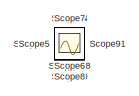
[diagram: root canvas - part 1/2, top left region]
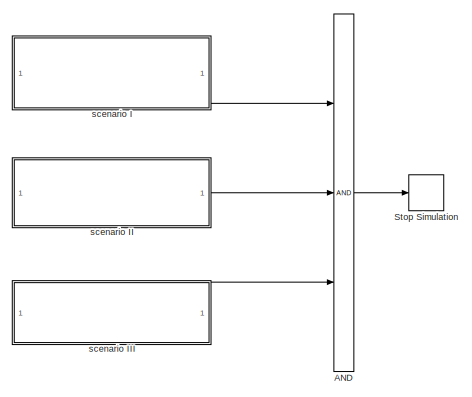
[diagram: root canvas - part 2/2, bottom right region]
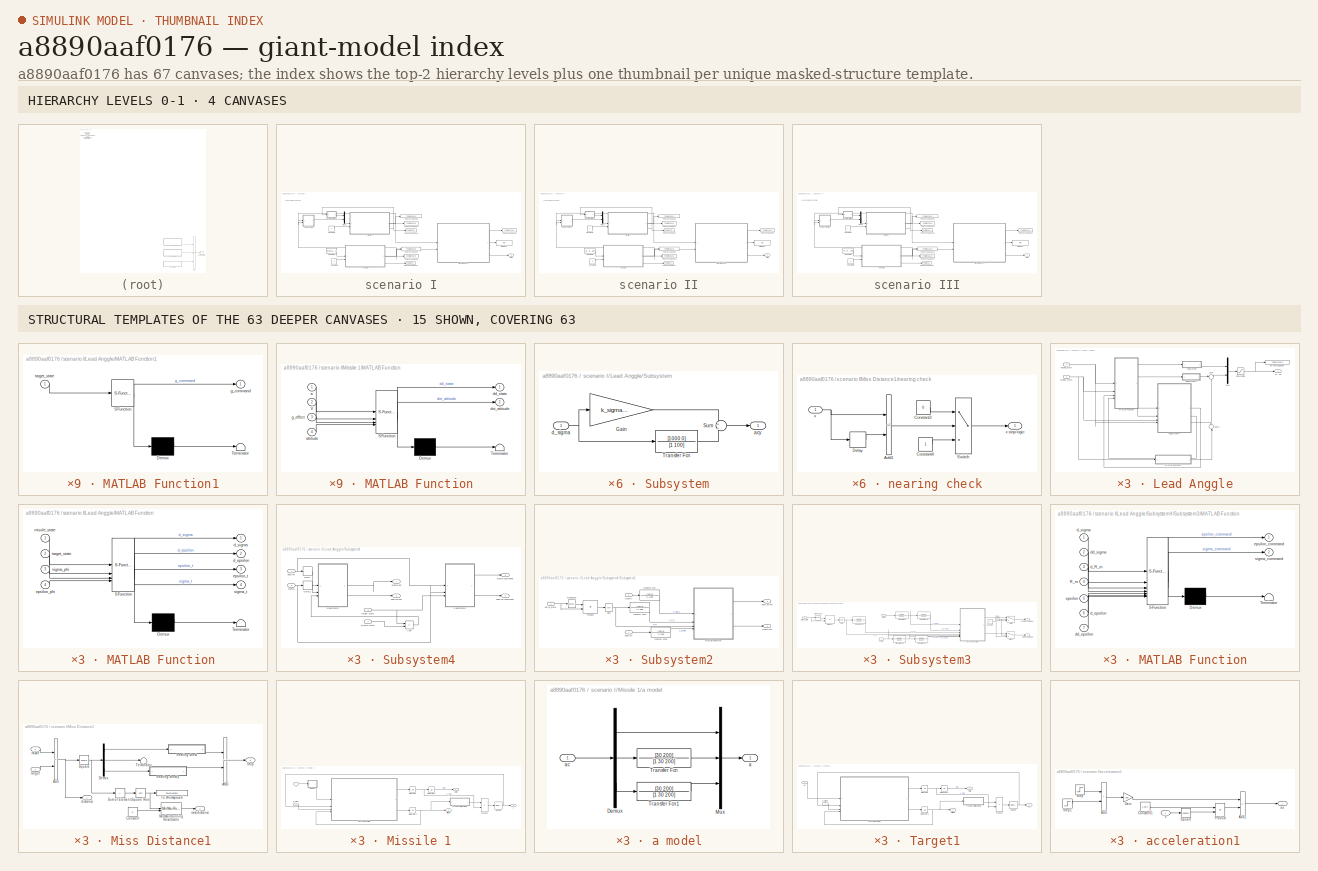
[diagram: thumbnail index - top-2 hierarchy levels (4 canvases) + 15 structural-template representatives of the remaining 63 canvases]
MODEL slx_a8890aaf0176
KIND model
CONFIG AbsTol = auto
CONFIG EnableMultiTasking = off
CONFIG FixedStep = 0.002
CONFIG InitFcn = init; % init script
CONFIG MaxStep = auto
CONFIG MinStep = auto
CONFIG RelTol = 1e-3
CONFIG SampleTimeConstraint = Unconstrained
CONFIG SolverName = ode4
CONFIG StartTime = 0.0
CONFIG StopTime = inf
BLOCK [Logic] AND
  AllPortsSameDT = off
  IconShape = distinctive
  Inputs = 3
  OutDataTypeStr = boolean
BLOCK [Scope] Scope
  Floating = off
  IOType = viewer
  NumInputPorts = 1
  ScopeSpecificationString = Simulink.scopes.TimeScopeBlockCfg('CurrentConfiguration', extmgr.ConfigurationSet(extmgr.Configuration('Core','General UI',true),extmgr.Configuration('Core','Source UI',true),extmgr.Configuration('Sources','WiredSimulink',true,'DataLoggingVariableName','ScopeData1'),extmgr.Configuration('Visuals','Time Domain',true,'SerializedDisplays',{struct('MinYLimReal','-9095.33525','MaxYLimReal','1858.01721'...<+1452ch>
BLOCK [Scope] Scope1
  Floating = off
  IOType = viewer
  NumInputPorts = 1
  ScopeSpecificationString = Simulink.scopes.TimeScopeBlockCfg('CurrentConfiguration', extmgr.ConfigurationSet(extmgr.Configuration('Core','General UI',true),extmgr.Configuration('Core','Source UI',true),extmgr.Configuration('Sources','WiredSimulink',true,'DataLoggingVariableName','ScopeData1'),extmgr.Configuration('Visuals','Time Domain',true,'SerializedDisplays',{struct('MinYLimReal','-72.81517','MaxYLimReal','655.33657','Y...<+1392ch>
BLOCK [Scope] Scope10
  Floating = off
  IOType = viewer
  NumInputPorts = 1
  ScopeSpecificationString = Simulink.scopes.TimeScopeBlockCfg('CurrentConfiguration', extmgr.ConfigurationSet(extmgr.Configuration('Core','General UI',true),extmgr.Configuration('Core','Source UI',true),extmgr.Configuration('Sources','WiredSimulink',true,'DataLoggingVariableName','ScopeData10'),extmgr.Configuration('Visuals','Time Domain',true,'SerializedDisplays',{struct('MinYLimReal','-0.3927','MaxYLimReal','3.53429','YLab...<+1358ch>
BLOCK [Scope] Scope11
  Floating = off
  IOType = viewer
  NumInputPorts = 1
  ScopeSpecificationString = Simulink.scopes.TimeScopeBlockCfg('CurrentConfiguration', extmgr.ConfigurationSet(extmgr.Configuration('Core','General UI',true),extmgr.Configuration('Core','Source UI',true),extmgr.Configuration('Sources','WiredSimulink',true,'DataLoggingVariableName','ScopeData11'),extmgr.Configuration('Visuals','Time Domain',true,'SerializedDisplays',{struct('MinYLimReal','200.00000','MaxYLimReal','400.00000','...<+1374ch>
BLOCK [Scope] Scope12
  Floating = off
  IOType = viewer
  NumInputPorts = 1
  ScopeSpecificationString = Simulink.scopes.TimeScopeBlockCfg('CurrentConfiguration', extmgr.ConfigurationSet(extmgr.Configuration('Core','General UI',true),extmgr.Configuration('Core','Source UI',true),extmgr.Configuration('Sources','WiredSimulink',true,'DataLoggingVariableName','ScopeData1'),extmgr.Configuration('Visuals','Time Domain',true,'SerializedDisplays',{struct('MinYLimReal','-604.06326','MaxYLimReal','5436.56932',...<+1459ch>
BLOCK [Scope] Scope13
  Floating = off
  IOType = viewer
  NumInputPorts = 1
  ScopeSpecificationString = Simulink.scopes.TimeScopeBlockCfg('CurrentConfiguration', extmgr.ConfigurationSet(extmgr.Configuration('Core','General UI',true),extmgr.Configuration('Core','Source UI',true),extmgr.Configuration('Sources','WiredSimulink',true,'DataLoggingVariableName','ScopeData1'),extmgr.Configuration('Visuals','Time Domain',true,'SerializedDisplays',{struct('MinYLimReal','-72.57557','MaxYLimReal','653.1801','YL...<+1403ch>
BLOCK [Scope] Scope14
  Floating = off
  IOType = viewer
  NumInputPorts = 1
  ScopeSpecificationString = Simulink.scopes.TimeScopeBlockCfg('CurrentConfiguration', extmgr.ConfigurationSet(extmgr.Configuration('Core','General UI',true),extmgr.Configuration('Core','Source UI',true),extmgr.Configuration('Sources','WiredSimulink',true,'DataLoggingVariableName','ScopeData2'),extmgr.Configuration('Visuals','Time Domain',true,'SerializedDisplays',{struct('MinYLimReal','-0.0000000000000000175','MaxYLimReal','...<+1510ch>
BLOCK [Scope] Scope15
  Floating = off
  IOType = viewer
  NumInputPorts = 1
  ScopeSpecificationString = Simulink.scopes.TimeScopeBlockCfg('CurrentConfiguration', extmgr.ConfigurationSet(extmgr.Configuration('Core','General UI',true),extmgr.Configuration('Core','Source UI',true),extmgr.Configuration('Sources','WiredSimulink',true,'DataLoggingVariableName','ScopeData2'),extmgr.Configuration('Visuals','Time Domain',true,'SerializedDisplays',{struct('MinYLimReal','-0.02332','MaxYLimReal','-0.02251','YLa...<+1398ch>
BLOCK [Scope] Scope16
  Floating = off
  IOType = viewer
  NumInputPorts = 1
  ScopeSpecificationString = Simulink.scopes.TimeScopeBlockCfg('CurrentConfiguration', extmgr.ConfigurationSet(extmgr.Configuration('Core','General UI',true),extmgr.Configuration('Core','Source UI',true),extmgr.Configuration('Sources','WiredSimulink',true,'DataLoggingVariableName','ScopeData4'),extmgr.Configuration('Visuals','Time Domain',true,'SerializedDisplays',{struct('MinYLimReal','-6.13125','MaxYLimReal','55.18125','YLa...<+1415ch>
BLOCK [Scope] Scope17
  Floating = off
  IOType = viewer
  NumInputPorts = 1
  ScopeSpecificationString = Simulink.scopes.TimeScopeBlockCfg('CurrentConfiguration', extmgr.ConfigurationSet(extmgr.Configuration('Core','General UI',true),extmgr.Configuration('Core','Source UI',true),extmgr.Configuration('Sources','WiredSimulink',true,'DataLoggingVariableName','ScopeData5'),extmgr.Configuration('Visuals','Time Domain',true,'SerializedDisplays',{struct('MinYLimReal','5491.82041','MaxYLimReal','8883.13523',...<+1409ch>
BLOCK [Scope] Scope18
  Floating = off
  IOType = viewer
  NumInputPorts = 1
  ScopeSpecificationString = Simulink.scopes.TimeScopeBlockCfg('CurrentConfiguration', extmgr.ConfigurationSet(extmgr.Configuration('Core','General UI',true),extmgr.Configuration('Core','Source UI',true),extmgr.Configuration('Sources','WiredSimulink',true,'DataLoggingVariableName','ScopeData6'),extmgr.Configuration('Visuals','Time Domain',true,'SerializedDisplays',{struct('MinYLimReal','-0.000000000000000009','MaxYLimReal','0...<+1493ch>
BLOCK [Scope] Scope2
  Floating = off
  IOType = viewer
  NumInputPorts = 1
  ScopeSpecificationString = Simulink.scopes.TimeScopeBlockCfg('CurrentConfiguration', extmgr.ConfigurationSet(extmgr.Configuration('Core','General UI',true),extmgr.Configuration('Core','Source UI',true),extmgr.Configuration('Sources','WiredSimulink',true,'DataLoggingVariableName','ScopeData1'),extmgr.Configuration('Visuals','Time Domain',true,'SerializedDisplays',{struct('MinYLimReal','-6.13125','MaxYLimReal','55.18125','YLa...<+1388ch>
BLOCK [Scope] Scope20
  Floating = off
  IOType = viewer
  NumInputPorts = 1
  ScopeSpecificationString = Simulink.scopes.TimeScopeBlockCfg('CurrentConfiguration', extmgr.ConfigurationSet(extmgr.Configuration('Core','General UI',true),extmgr.Configuration('Core','Source UI',true),extmgr.Configuration('Sources','WiredSimulink',true,'DataLoggingVariableName','ScopeData8'),extmgr.Configuration('Visuals','Time Domain',true,'SerializedDisplays',{struct('MinYLimReal','-4.47062','MaxYLimReal','40.36014','YLa...<+1397ch>
BLOCK [Scope] Scope21
  Floating = off
  IOType = viewer
  NumInputPorts = 1
  ScopeSpecificationString = Simulink.scopes.TimeScopeBlockCfg('CurrentConfiguration', extmgr.ConfigurationSet(extmgr.Configuration('Core','General UI',true),extmgr.Configuration('Core','Source UI',true),extmgr.Configuration('Sources','WiredSimulink',true,'DataLoggingVariableName','ScopeData9'),extmgr.Configuration('Visuals','Time Domain',true,'SerializedDisplays',{struct('MinYLimReal','-994.25187','MaxYLimReal','4096.81321',...<+1412ch>
BLOCK [Scope] Scope22
  Floating = off
  IOType = viewer
  NumInputPorts = 1
  ScopeSpecificationString = Simulink.scopes.TimeScopeBlockCfg('CurrentConfiguration', extmgr.ConfigurationSet(extmgr.Configuration('Core','General UI',true),extmgr.Configuration('Core','Source UI',true),extmgr.Configuration('Sources','WiredSimulink',true,'DataLoggingVariableName','ScopeData10'),extmgr.Configuration('Visuals','Time Domain',true,'SerializedDisplays',{struct('MinYLimReal','-0.00000000000000001','MaxYLimReal','0...<+1508ch>
BLOCK [Scope] Scope23
  Floating = off
  IOType = viewer
  NumInputPorts = 1
  ScopeSpecificationString = Simulink.scopes.TimeScopeBlockCfg('CurrentConfiguration', extmgr.ConfigurationSet(extmgr.Configuration('Core','General UI',true),extmgr.Configuration('Core','Source UI',true),extmgr.Configuration('Sources','WiredSimulink',true,'DataLoggingVariableName','ScopeData11'),extmgr.Configuration('Visuals','Time Domain',true,'SerializedDisplays',{struct('MinYLimReal','-0.000000000000000001','MaxYLimReal','...<+1496ch>
BLOCK [Scope] Scope24
  Floating = off
  IOType = viewer
  NumInputPorts = 1
  ScopeSpecificationString = Simulink.scopes.TimeScopeBlockCfg('CurrentConfiguration', extmgr.ConfigurationSet(extmgr.Configuration('Core','General UI',true),extmgr.Configuration('Core','Source UI',true),extmgr.Configuration('Sources','WiredSimulink',true,'DataLoggingVariableName','ScopeData1'),extmgr.Configuration('Visuals','Time Domain',true,'SerializedDisplays',{struct('MinYLimReal','-107115.79279','MaxYLimReal','961235.50...<+1427ch>
BLOCK [Scope] Scope3
  Floating = off
  IOType = viewer
  NumInputPorts = 1
  ScopeSpecificationString = Simulink.scopes.TimeScopeBlockCfg('CurrentConfiguration', extmgr.ConfigurationSet(extmgr.Configuration('Core','General UI',true),extmgr.Configuration('Core','Source UI',true),extmgr.Configuration('Sources','WiredSimulink',true,'DataLoggingVariableName','ScopeData1'),extmgr.Configuration('Visuals','Time Domain',true,'SerializedDisplays',{struct('MinYLimReal','-337.5','MaxYLimReal','37.5','YLabelRea...<+1380ch>
BLOCK [Scope] Scope4
  Floating = off
  IOType = viewer
  NumInputPorts = 1
  ScopeSpecificationString = Simulink.scopes.TimeScopeBlockCfg('CurrentConfiguration', extmgr.ConfigurationSet(extmgr.Configuration('Core','General UI',true),extmgr.Configuration('Core','Source UI',true),extmgr.Configuration('Sources','WiredSimulink',true,'DataLoggingVariableName','ScopeData2'),extmgr.Configuration('Visuals','Time Domain',true,'SerializedDisplays',{struct('MinYLimReal','-337.5','MaxYLimReal','37.5','YLabelRea...<+1380ch>
BLOCK [Scope] Scope5
  Floating = off
  IOType = viewer
  NumInputPorts = 1
  ScopeSpecificationString = Simulink.scopes.TimeScopeBlockCfg('CurrentConfiguration', extmgr.ConfigurationSet(extmgr.Configuration('Core','General UI',true),extmgr.Configuration('Core','Source UI',true),extmgr.Configuration('Sources','WiredSimulink',true,'DataLoggingVariableName','ScopeData3'),extmgr.Configuration('Visuals','Time Domain',true,'SerializedDisplays',{struct('MinYLimReal','-1.00000','MaxYLimReal','1.00000','YLab...<+1359ch>
BLOCK [Scope] Scope6
  Floating = off
  IOType = viewer
  NumInputPorts = 1
  ScopeSpecificationString = Simulink.scopes.TimeScopeBlockCfg('CurrentConfiguration', extmgr.ConfigurationSet(extmgr.Configuration('Core','General UI',true),extmgr.Configuration('Core','Source UI',true),extmgr.Configuration('Sources','WiredSimulink',true,'DataLoggingVariableName','ScopeData6'),extmgr.Configuration('Visuals','Time Domain',true,'SerializedDisplays',{struct('MinYLimReal','-614.44146','MaxYLimReal','5529.9731','...<+1399ch>
BLOCK [Scope] Scope7
  Floating = off
  IOType = viewer
  NumInputPorts = 1
  ScopeSpecificationString = Simulink.scopes.TimeScopeBlockCfg('CurrentConfiguration', extmgr.ConfigurationSet(extmgr.Configuration('Core','General UI',true),extmgr.Configuration('Core','Source UI',true),extmgr.Configuration('Sources','WiredSimulink',true,'DataLoggingVariableName','ScopeData7'),extmgr.Configuration('Visuals','Time Domain',true,'SerializedDisplays',{struct('MinYLimReal','-0.11496','MaxYLimReal','1.03464','YLab...<+1359ch>
BLOCK [Scope] Scope8
  Floating = off
  IOType = viewer
  NumInputPorts = 1
  ScopeSpecificationString = Simulink.scopes.TimeScopeBlockCfg('CurrentConfiguration', extmgr.ConfigurationSet(extmgr.Configuration('Core','General UI',true),extmgr.Configuration('Core','Source UI',true),extmgr.Configuration('Sources','WiredSimulink',true,'DataLoggingVariableName','ScopeData8'),extmgr.Configuration('Visuals','Time Domain',true,'SerializedDisplays',{struct('MinYLimReal','412.19771','MaxYLimReal','425.81202','Y...<+1373ch>
BLOCK [Scope] Scope9
  Floating = off
  IOType = viewer
  NumInputPorts = 1
  ScopeSpecificationString = Simulink.scopes.TimeScopeBlockCfg('CurrentConfiguration', extmgr.ConfigurationSet(extmgr.Configuration('Core','General UI',true),extmgr.Configuration('Core','Source UI',true),extmgr.Configuration('Sources','WiredSimulink',true,'DataLoggingVariableName','ScopeData9'),extmgr.Configuration('Visuals','Time Domain',true,'SerializedDisplays',{struct('MinYLimReal','-625.00000','MaxYLimReal','5625.00000',...<+1406ch>
BLOCK [Stop] Stop Simulation
BLOCK [SubSystem] scenario I
BLOCK [Constant] scenario I/Constant3
BLOCK [Constant] scenario I/Constant4
  Value = zeros(3, 1)
BLOCK [Constant] scenario I/Constant5
  Value = 0
BLOCK [Display] scenario I/Display1
  Decimation = 1
BLOCK [SubSystem] scenario I/Lead Anggle
BLOCK [SubSystem] scenario I/Lead Anggle/MATLAB Function
  ErrorFcn = Stateflow.Translate.translate
  LibrarySourceBlock = simulink/User-Defined\nFunctions/MATLAB Function
  PermitHierarchicalResolution = ExplicitOnly
  SFBlockType = MATLAB Function
  TreatAsAtomicUnit = on
BLOCK [Demux] scenario I/Lead Anggle/MATLAB Function/ Demux 
  Outputs = 1
BLOCK [S-Function] scenario I/Lead Anggle/MATLAB Function/ SFunction 
  EnableBusSupport = on
  FunctionName = sf_sfun
  PortCounts = [4 5]
  SFcnIsStateOwnerBlock = off
  SFunctionDeploymentMode = off
  Tag = Stateflow S-Function 14
BLOCK [Terminator] scenario I/Lead Anggle/MATLAB Function/ Terminator 
BLOCK [Outport] scenario I/Lead Anggle/MATLAB Function/d_epsilon
  Port = 2
BLOCK [Outport] scenario I/Lead Anggle/MATLAB Function/d_sigma
BLOCK [Inport] scenario I/Lead Anggle/MATLAB Function/epsilon_phi
  Port = 4
BLOCK [Outport] scenario I/Lead Anggle/MATLAB Function/epsilon_t
  Port = 3
BLOCK [Inport] scenario I/Lead Anggle/MATLAB Function/missle_state
BLOCK [Inport] scenario I/Lead Anggle/MATLAB Function/sigma_phi
  Port = 3
BLOCK [Outport] scenario I/Lead Anggle/MATLAB Function/sigma_t
  Port = 4
BLOCK [Inport] scenario I/Lead Anggle/MATLAB Function/target_state
  Port = 2
BLOCK [SubSystem] scenario I/Lead Anggle/MATLAB Function1
  ErrorFcn = Stateflow.Translate.translate
  LibrarySourceBlock = simulink/User-Defined\nFunctions/MATLAB Function
  PermitHierarchicalResolution = ExplicitOnly
  SFBlockType = MATLAB Function
  TreatAsAtomicUnit = on
BLOCK [Demux] scenario I/Lead Anggle/MATLAB Function1/ Demux 
  Outputs = 1
BLOCK [S-Function] scenario I/Lead Anggle/MATLAB Function1/ SFunction 
  EnableBusSupport = on
  FunctionName = sf_sfun
  PortCounts = [1 2]
  SFcnIsStateOwnerBlock = off
  SFunctionDeploymentMode = off
  Tag = Stateflow S-Function 15
BLOCK [Terminator] scenario I/Lead Anggle/MATLAB Function1/ Terminator 
BLOCK [Outport] scenario I/Lead Anggle/MATLAB Function1/g_command
BLOCK [Inport] scenario I/Lead Anggle/MATLAB Function1/target_state
BLOCK [Mux] scenario I/Lead Anggle/Mux
  DisplayOption = bar
  Inputs = 2
BLOCK [Saturate] scenario I/Lead Anggle/Saturation
  LowerLimit = -5*9.81
  UpperLimit = 5*9.81
BLOCK [SubSystem] scenario I/Lead Anggle/Subsystem
BLOCK [Gain] scenario I/Lead Anggle/Subsystem/Gain
  Gain = k_sigma_lead_angle
BLOCK [Sum] scenario I/Lead Anggle/Subsystem/Sum
  Inputs = +|+
BLOCK [TransferFcn] scenario I/Lead Anggle/Subsystem/Transfer Fcn
  Denominator = [1 100]
  Numerator = [1000 0]
BLOCK [Outport] scenario I/Lead Anggle/Subsystem/acy
BLOCK [Inport] scenario I/Lead Anggle/Subsystem/d_sigma
BLOCK [SubSystem] scenario I/Lead Anggle/Subsystem1
BLOCK [Gain] scenario I/Lead Anggle/Subsystem1/Gain1
  Gain = k_epsilon_lead_angle
BLOCK [Sum] scenario I/Lead Anggle/Subsystem1/Sum
  Inputs = +|+
BLOCK [TransferFcn] scenario I/Lead Anggle/Subsystem1/Transfer Fcn
  Denominator = [1 100]
  Numerator = [1000 0]
BLOCK [Outport] scenario I/Lead Anggle/Subsystem1/azc
BLOCK [Inport] scenario I/Lead Anggle/Subsystem1/d_epsilon
BLOCK [SubSystem] scenario I/Lead Anggle/Subsystem4
BLOCK [Sum] scenario I/Lead Anggle/Subsystem4/Add
  IconShape = rectangular
  Inputs = -+
BLOCK [Delay] scenario I/Lead Anggle/Subsystem4/Delay
  DelayLength = 1
  InputPortMap = u0
BLOCK [Delay] scenario I/Lead Anggle/Subsystem4/Delay1
  DelayLength = 1
  InputPortMap = u0
BLOCK [SubSystem] scenario I/Lead Anggle/Subsystem4/Subsystem2
BLOCK [SubSystem] scenario I/Lead Anggle/Subsystem4/Subsystem2/MATLAB Function
  ErrorFcn = Stateflow.Translate.translate
  LibrarySourceBlock = simulink/User-Defined\nFunctions/MATLAB Function
  PermitHierarchicalResolution = ExplicitOnly
  SFBlockType = MATLAB Function
  TreatAsAtomicUnit = on
BLOCK [Demux] scenario I/Lead Anggle/Subsystem4/Subsystem2/MATLAB Function/ Demux 
  Outputs = 1
BLOCK [S-Function] scenario I/Lead Anggle/Subsystem4/Subsystem2/MATLAB Function/ SFunction 
  EnableBusSupport = on
  FunctionName = sf_sfun
  PortCounts = [4 3]
  SFcnIsStateOwnerBlock = off
  SFunctionDeploymentMode = off
  Tag = Stateflow S-Function 16
BLOCK [Terminator] scenario I/Lead Anggle/Subsystem4/Subsystem2/MATLAB Function/ Terminator 
BLOCK [Inport] scenario I/Lead Anggle/Subsystem4/Subsystem2/MATLAB Function/d_delta_R
  Port = 2
BLOCK [Inport] scenario I/Lead Anggle/Subsystem4/Subsystem2/MATLAB Function/d_epsilon
  Port = 4
BLOCK [Inport] scenario I/Lead Anggle/Subsystem4/Subsystem2/MATLAB Function/d_sigma
BLOCK [Inport] scenario I/Lead Anggle/Subsystem4/Subsystem2/MATLAB Function/delta_R
  Port = 3
BLOCK [Outport] scenario I/Lead Anggle/Subsystem4/Subsystem2/MATLAB Function/epsilon_phi
BLOCK [Outport] scenario I/Lead Anggle/Subsystem4/Subsystem2/MATLAB Function/sigma_phi
  Port = 2
BLOCK [Product] scenario I/Lead Anggle/Subsystem4/Subsystem2/Product
  Multiplication = Matrix(*)
BLOCK [Sqrt] scenario I/Lead Anggle/Subsystem4/Subsystem2/Sqrt
BLOCK [TransferFcn] scenario I/Lead Anggle/Subsystem4/Subsystem2/Transfer Fcn
  Denominator = [1 100]
  Numerator = [100 0]
BLOCK [TransferFcn] scenario I/Lead Anggle/Subsystem4/Subsystem2/Transfer Fcn2
  Denominator = [1 100]
  Numerator = [100 0]
BLOCK [TransferFcn] scenario I/Lead Anggle/Subsystem4/Subsystem2/Transfer Fcn4
  Denominator = [1 100]
  Numerator = [100 0]
BLOCK [Math] scenario I/Lead Anggle/Subsystem4/Subsystem2/Transpose
  Operator = transpose
BLOCK [Inport] scenario I/Lead Anggle/Subsystem4/Subsystem2/delta_state
  Port = 3
BLOCK [Inport] scenario I/Lead Anggle/Subsystem4/Subsystem2/epsilon
BLOCK [Outport] scenario I/Lead Anggle/Subsystem4/Subsystem2/epsilon phi
  Port = 2
BLOCK [Inport] scenario I/Lead Anggle/Subsystem4/Subsystem2/sigma
  Port = 2
BLOCK [Outport] scenario I/Lead Anggle/Subsystem4/Subsystem2/sigma phi
BLOCK [SubSystem] scenario I/Lead Anggle/Subsystem4/Subsystem3
BLOCK [Clock] scenario I/Lead Anggle/Subsystem4/Subsystem3/Clock
BLOCK [Constant] scenario I/Lead Anggle/Subsystem4/Subsystem3/Constant
  Value = 0
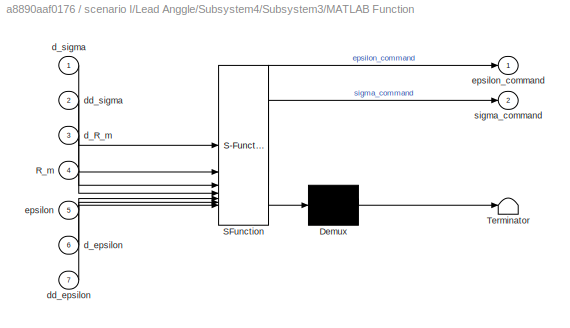
BLOCK [SubSystem] scenario I/Lead Anggle/Subsystem4/Subsystem3/MATLAB Function
  ErrorFcn = Stateflow.Translate.translate
  LibrarySourceBlock = simulink/User-Defined\nFunctions/MATLAB Function
  PermitHierarchicalResolution = ExplicitOnly
  SFBlockType = MATLAB Function
  TreatAsAtomicUnit = on
BLOCK [Demux] scenario I/Lead Anggle/Subsystem4/Subsystem3/MATLAB Function/ Demux 
  Outputs = 1
BLOCK [S-Function] scenario I/Lead Anggle/Subsystem4/Subsystem3/MATLAB Function/ SFunction 
  EnableBusSupport = on
  FunctionName = sf_sfun
  PortCounts = [7 3]
  SFcnIsStateOwnerBlock = off
  SFunctionDeploymentMode = off
  Tag = Stateflow S-Function 11
BLOCK [Terminator] scenario I/Lead Anggle/Subsystem4/Subsystem3/MATLAB Function/ Terminator 
BLOCK [Inport] scenario I/Lead Anggle/Subsystem4/Subsystem3/MATLAB Function/R_m
  Port = 4
BLOCK [Inport] scenario I/Lead Anggle/Subsystem4/Subsystem3/MATLAB Function/d_R_m
  Port = 3
BLOCK [Inport] scenario I/Lead Anggle/Subsystem4/Subsystem3/MATLAB Function/d_epsilon
  Port = 6
BLOCK [Inport] scenario I/Lead Anggle/Subsystem4/Subsystem3/MATLAB Function/d_sigma
BLOCK [Inport] scenario I/Lead Anggle/Subsystem4/Subsystem3/MATLAB Function/dd_epsilon
  Port = 7
BLOCK [Inport] scenario I/Lead Anggle/Subsystem4/Subsystem3/MATLAB Function/dd_sigma
  Port = 2
BLOCK [Inport] scenario I/Lead Anggle/Subsystem4/Subsystem3/MATLAB Function/epsilon
  Port = 5
BLOCK [Outport] scenario I/Lead Anggle/Subsystem4/Subsystem3/MATLAB Function/epsilon_command
BLOCK [Outport] scenario I/Lead Anggle/Subsystem4/Subsystem3/MATLAB Function/sigma_command
  Port = 2
BLOCK [Product] scenario I/Lead Anggle/Subsystem4/Subsystem3/Product
  Multiplication = Matrix(*)
BLOCK [Sqrt] scenario I/Lead Anggle/Subsystem4/Subsystem3/Sqrt
BLOCK [Switch] scenario I/Lead Anggle/Subsystem4/Subsystem3/Switch
  Criteria = u2 > Threshold
  InputSameDT = off
  SaturateOnIntegerOverflow = off
  Threshold = 0.2
BLOCK [Switch] scenario I/Lead Anggle/Subsystem4/Subsystem3/Switch1
  Criteria = u2 > Threshold
  InputSameDT = off
  SaturateOnIntegerOverflow = off
  Threshold = 0.2
BLOCK [TransferFcn] scenario I/Lead Anggle/Subsystem4/Subsystem3/Transfer Fcn
  Denominator = [1 100]
  Numerator = [100 0]
BLOCK [TransferFcn] scenario I/Lead Anggle/Subsystem4/Subsystem3/Transfer Fcn1
  Denominator = [1 100]
  Numerator = [100 0]
BLOCK [TransferFcn] scenario I/Lead Anggle/Subsystem4/Subsystem3/Transfer Fcn2
  Denominator = [1 100]
  Numerator = [100 0]
BLOCK [TransferFcn] scenario I/Lead Anggle/Subsystem4/Subsystem3/Transfer Fcn3
  Denominator = [1 100]
  Numerator = [100 0]
BLOCK [TransferFcn] scenario I/Lead Anggle/Subsystem4/Subsystem3/Transfer Fcn4
  Denominator = [1 100]
  Numerator = [100 0]
BLOCK [Math] scenario I/Lead Anggle/Subsystem4/Subsystem3/Transpose
  Operator = transpose
BLOCK [Inport] scenario I/Lead Anggle/Subsystem4/Subsystem3/epsilon
BLOCK [Outport] scenario I/Lead Anggle/Subsystem4/Subsystem3/epsilon command
  Port = 2
BLOCK [Inport] scenario I/Lead Anggle/Subsystem4/Subsystem3/sigma
  Port = 2
BLOCK [Outport] scenario I/Lead Anggle/Subsystem4/Subsystem3/sigma command
BLOCK [Inport] scenario I/Lead Anggle/Subsystem4/Subsystem3/target_state
  Port = 3
BLOCK [Inport] scenario I/Lead Anggle/Subsystem4/epsilon
BLOCK [Outport] scenario I/Lead Anggle/Subsystem4/epsilon command
  Port = 4
BLOCK [Outport] scenario I/Lead Anggle/Subsystem4/epsilon phi
  Port = 2
BLOCK [Inport] scenario I/Lead Anggle/Subsystem4/missle state
  Port = 4
BLOCK [Inport] scenario I/Lead Anggle/Subsystem4/sigma
  Port = 2
BLOCK [Outport] scenario I/Lead Anggle/Subsystem4/sigma command
  Port = 3
BLOCK [Outport] scenario I/Lead Anggle/Subsystem4/sigma phi
BLOCK [Inport] scenario I/Lead Anggle/Subsystem4/target state
  Port = 3
BLOCK [Sum] scenario I/Lead Anggle/Sum
  Inputs = |++
BLOCK [Sum] scenario I/Lead Anggle/Sum1
  Inputs = ++|
  NameLocation = right
BLOCK [ToWorkspace] scenario I/Lead Anggle/To Workspace6
  FixptAsFi = on
  MaxDataPoints = inf
  SampleTime = -1
  Save2DSignal = 2-D array (concatenate along first dimension)
  SaveFormat = Timeseries
  VariableName = command_lead_angle
BLOCK [Outport] scenario I/Lead Anggle/ay, az
BLOCK [Inport] scenario I/Lead Anggle/missle_state
BLOCK [Inport] scenario I/Lead Anggle/target_state
  Port = 2
BLOCK [SubSystem] scenario I/Miss Distance1
BLOCK [Logic] scenario I/Miss Distance1/AND
  AllPortsSameDT = off
  IconShape = distinctive
  OutDataTypeStr = boolean
BLOCK [Sum] scenario I/Miss Distance1/Add
  IconShape = rectangular
  Inputs = +-
BLOCK [Constant] scenario I/Miss Distance1/Constant
  Value = 0
BLOCK [Demux] scenario I/Miss Distance1/Demux
  Outputs = 3
BLOCK [Reference] scenario I/Miss Distance1/MinMax Running Resettable  REF=simulink/Math
Operations/MinMax
Running
Resettable
  SourceBlock = simulink/Math\nOperations/MinMax\nRunning\nResettable
  SourceType = MinMax Running Resettable
BLOCK [Math] scenario I/Miss Distance1/Square
  Operator = square
BLOCK [Sqrt] scenario I/Miss Distance1/Square Root
BLOCK [Outport] scenario I/Miss Distance1/Stop
  Port = 3
BLOCK [Sum] scenario I/Miss Distance1/Sum of Elements
  IconShape = rectangular
  Inputs = +
BLOCK [Terminator] scenario I/Miss Distance1/Terminator
BLOCK [ToWorkspace] scenario I/Miss Distance1/To Workspace6
  FixptAsFi = on
  MaxDataPoints = inf
  SampleTime = -1
  Save2DSignal = 2-D array (concatenate along first dimension)
  SaveFormat = Timeseries
  VariableName = distance_lead_angle
BLOCK [Outport] scenario I/Miss Distance1/distance
BLOCK [Outport] scenario I/Miss Distance1/miss distance
  Port = 2
BLOCK [Inport] scenario I/Miss Distance1/missle
BLOCK [SubSystem] scenario I/Miss Distance1/nearing check
BLOCK [SubSystem] scenario I/Miss Distance1/nearing check y
BLOCK [Sum] scenario I/Miss Distance1/nearing check y/Add1
  IconShape = rectangular
  Inputs = -+
BLOCK [Constant] scenario I/Miss Distance1/nearing check y/Constant3
  Value = 0
BLOCK [Constant] scenario I/Miss Distance1/nearing check y/Constant4
BLOCK [Delay] scenario I/Miss Distance1/nearing check y/Delay
  DelayLength = 1
  InitialCondition = inf
  InputPortMap = u0
BLOCK [Switch] scenario I/Miss Distance1/nearing check y/Switch
  Criteria = u2 > Threshold
  InputSameDT = off
  SaturateOnIntegerOverflow = off
BLOCK [Inport] scenario I/Miss Distance1/nearing check y/z
BLOCK [Outport] scenario I/Miss Distance1/nearing check y/z stop logic
BLOCK [Sum] scenario I/Miss Distance1/nearing check/Add1
  IconShape = rectangular
  Inputs = -+
BLOCK [Constant] scenario I/Miss Distance1/nearing check/Constant3
  Value = 0
BLOCK [Constant] scenario I/Miss Distance1/nearing check/Constant4
BLOCK [Delay] scenario I/Miss Distance1/nearing check/Delay
  DelayLength = 1
  InitialCondition = inf
  InputPortMap = u0
BLOCK [Switch] scenario I/Miss Distance1/nearing check/Switch
  Criteria = u2 > Threshold
  InputSameDT = off
  SaturateOnIntegerOverflow = off
BLOCK [Inport] scenario I/Miss Distance1/nearing check/x
BLOCK [Outport] scenario I/Miss Distance1/nearing check/x stop logic
BLOCK [Inport] scenario I/Miss Distance1/target
  Port = 2
BLOCK [SubSystem] scenario I/Missile 1
BLOCK [Integrator] scenario I/Missile 1/Integrator
  InitialCondition = d_state_m
BLOCK [Integrator] scenario I/Missile 1/Integrator1
  InitialCondition = state_m0
BLOCK [Integrator] scenario I/Missile 1/Integrator2
  InitialCondition = attitude_m0
BLOCK [SubSystem] scenario I/Missile 1/MATLAB Function
  ErrorFcn = Stateflow.Translate.translate
  LibrarySourceBlock = simulink/User-Defined\nFunctions/MATLAB Function
  PermitHierarchicalResolution = ExplicitOnly
  SFBlockType = MATLAB Function
  TreatAsAtomicUnit = on
BLOCK [Demux] scenario I/Missile 1/MATLAB Function/ Demux 
  Outputs = 1
BLOCK [S-Function] scenario I/Missile 1/MATLAB Function/ SFunction 
  EnableBusSupport = on
  FunctionName = sf_sfun
  PortCounts = [4 3]
  SFcnIsStateOwnerBlock = off
  SFunctionDeploymentMode = off
  Tag = Stateflow S-Function 5
BLOCK [Terminator] scenario I/Missile 1/MATLAB Function/ Terminator 
BLOCK [Inport] scenario I/Missile 1/MATLAB Function/V
  Port = 2
BLOCK [Inport] scenario I/Missile 1/MATLAB Function/a
BLOCK [Inport] scenario I/Missile 1/MATLAB Function/attitude
  Port = 4
BLOCK [Outport] scenario I/Missile 1/MATLAB Function/dd_state
BLOCK [Outport] scenario I/Missile 1/MATLAB Function/dot_attitude
  Port = 2
BLOCK [Inport] scenario I/Missile 1/MATLAB Function/g_effect
  Port = 3
BLOCK [Product] scenario I/Missile 1/Product
  Multiplication = Matrix(*)
BLOCK [Selector] scenario I/Missile 1/Selector
  IndexOptions = Index vector (dialog)
  Indices = [1]
  InputPortWidth = 3
  OutputSizes = 1
BLOCK [SubSystem] scenario I/Missile 1/Transformation Matrix
  ErrorFcn = Stateflow.Translate.translate
  LibrarySourceBlock = simulink/User-Defined\nFunctions/MATLAB Function
  PermitHierarchicalResolution = ExplicitOnly
  SFBlockType = MATLAB Function
  TreatAsAtomicUnit = on
BLOCK [Demux] scenario I/Missile 1/Transformation Matrix/ Demux 
  Outputs = 1
BLOCK [S-Function] scenario I/Missile 1/Transformation Matrix/ SFunction 
  EnableBusSupport = on
  FunctionName = sf_sfun
  PortCounts = [1 2]
  SFcnIsStateOwnerBlock = off
  SFunctionDeploymentMode = off
  Tag = Stateflow S-Function 6
BLOCK [Terminator] scenario I/Missile 1/Transformation Matrix/ Terminator 
BLOCK [Outport] scenario I/Missile 1/Transformation Matrix/T_GV
BLOCK [Inport] scenario I/Missile 1/Transformation Matrix/attitude
BLOCK [Outport] scenario I/Missile 1/V
  Port = 3
BLOCK [Inport] scenario I/Missile 1/a
BLOCK [SubSystem] scenario I/Missile 1/a model
BLOCK [Demux] scenario I/Missile 1/a model/Demux
  Outputs = 3
BLOCK [Mux] scenario I/Missile 1/a model/Mux
  DisplayOption = bar
  Inputs = 3
BLOCK [TransferFcn] scenario I/Missile 1/a model/Transfer Fcn
  Denominator = [1 30 200]
  Numerator = [30 200]
BLOCK [TransferFcn] scenario I/Missile 1/a model/Transfer Fcn1
  Denominator = [1 30 200]
  Numerator = [30 200]
BLOCK [Outport] scenario I/Missile 1/a model/a
BLOCK [Inport] scenario I/Missile 1/a model/ac
BLOCK [Outport] scenario I/Missile 1/attitude
  Port = 2
BLOCK [Inport] scenario I/Missile 1/g_effect
  Port = 2
BLOCK [Outport] scenario I/Missile 1/state
BLOCK [Mux] scenario I/Mux1
  DisplayOption = bar
  Inputs = 2
BLOCK [Outport] scenario I/Stop
BLOCK [SubSystem] scenario I/Target1
BLOCK [Integrator] scenario I/Target1/Integrator
  InitialCondition = d_state_t
BLOCK [Integrator] scenario I/Target1/Integrator1
  InitialCondition = state_t0
BLOCK [Integrator] scenario I/Target1/Integrator2
  InitialCondition = attitude_t0
BLOCK [SubSystem] scenario I/Target1/MATLAB Function
  ErrorFcn = Stateflow.Translate.translate
  LibrarySourceBlock = simulink/User-Defined\nFunctions/MATLAB Function
  PermitHierarchicalResolution = ExplicitOnly
  SFBlockType = MATLAB Function
  TreatAsAtomicUnit = on
BLOCK [Demux] scenario I/Target1/MATLAB Function/ Demux 
  Outputs = 1
BLOCK [S-Function] scenario I/Target1/MATLAB Function/ SFunction 
  EnableBusSupport = on
  FunctionName = sf_sfun
  PortCounts = [4 3]
  SFcnIsStateOwnerBlock = off
  SFunctionDeploymentMode = off
  Tag = Stateflow S-Function 9
BLOCK [Terminator] scenario I/Target1/MATLAB Function/ Terminator 
BLOCK [Inport] scenario I/Target1/MATLAB Function/V
  Port = 2
BLOCK [Inport] scenario I/Target1/MATLAB Function/a
BLOCK [Inport] scenario I/Target1/MATLAB Function/attitude
  Port = 4
BLOCK [Outport] scenario I/Target1/MATLAB Function/dd_state
BLOCK [Outport] scenario I/Target1/MATLAB Function/dot_attitude
  Port = 2
BLOCK [Inport] scenario I/Target1/MATLAB Function/g_effect
  Port = 3
BLOCK [Product] scenario I/Target1/Product
  Multiplication = Matrix(*)
BLOCK [Selector] scenario I/Target1/Selector
  IndexOptions = Index vector (dialog)
  Indices = [1]
  InputPortWidth = 3
  OutputSizes = 1
BLOCK [SubSystem] scenario I/Target1/Transformation Matrix
  ErrorFcn = Stateflow.Translate.translate
  LibrarySourceBlock = simulink/User-Defined\nFunctions/MATLAB Function
  PermitHierarchicalResolution = ExplicitOnly
  SFBlockType = MATLAB Function
  TreatAsAtomicUnit = on
BLOCK [Demux] scenario I/Target1/Transformation Matrix/ Demux 
  Outputs = 1
BLOCK [S-Function] scenario I/Target1/Transformation Matrix/ SFunction 
  EnableBusSupport = on
  FunctionName = sf_sfun
  PortCounts = [1 2]
  SFcnIsStateOwnerBlock = off
  SFunctionDeploymentMode = off
  Tag = Stateflow S-Function 10
BLOCK [Terminator] scenario I/Target1/Transformation Matrix/ Terminator 
BLOCK [Outport] scenario I/Target1/Transformation Matrix/T_GV
BLOCK [Inport] scenario I/Target1/Transformation Matrix/attitude
BLOCK [Outport] scenario I/Target1/V
  Port = 3
BLOCK [Inport] scenario I/Target1/ac
BLOCK [Outport] scenario I/Target1/attitude
  Port = 2
BLOCK [Inport] scenario I/Target1/g_effect
  Port = 2
BLOCK [Outport] scenario I/Target1/state
BLOCK [ToWorkspace] scenario I/To Workspace10
  Commented = on
  FixptAsFi = on
  MaxDataPoints = inf
  SampleTime = -1
  Save2DSignal = 2-D array (concatenate along first dimension)
  SaveFormat = Timeseries
  VariableName = missle_attitude1
BLOCK [ToWorkspace] scenario I/To Workspace11
  Commented = on
  FixptAsFi = on
  MaxDataPoints = inf
  SampleTime = -1
  Save2DSignal = 2-D array (concatenate along first dimension)
  SaveFormat = Timeseries
  VariableName = V_missle1
BLOCK [ToWorkspace] scenario I/To Workspace12
  Commented = on
  FixptAsFi = on
  MaxDataPoints = inf
  SampleTime = -1
  Save2DSignal = 2-D array (concatenate along first dimension)
  SaveFormat = Timeseries
  VariableName = V_target1
BLOCK [ToWorkspace] scenario I/To Workspace13
  Commented = on
  FixptAsFi = on
  MaxDataPoints = inf
  SampleTime = -1
  Save2DSignal = 2-D array (concatenate along first dimension)
  SaveFormat = Timeseries
  VariableName = target_distance1
BLOCK [ToWorkspace] scenario I/To Workspace7
  FixptAsFi = on
  MaxDataPoints = inf
  SampleTime = -1
  Save2DSignal = 2-D array (concatenate along first dimension)
  SaveFormat = Timeseries
  VariableName = target_state_lead_angle
BLOCK [ToWorkspace] scenario I/To Workspace8
  FixptAsFi = on
  MaxDataPoints = inf
  SampleTime = -1
  Save2DSignal = 2-D array (concatenate along first dimension)
  SaveFormat = Timeseries
  VariableName = missle_state_lead_angle
BLOCK [ToWorkspace] scenario I/To Workspace9
  Commented = on
  FixptAsFi = on
  MaxDataPoints = inf
  SampleTime = -1
  Save2DSignal = 2-D array (concatenate along first dimension)
  SaveFormat = Timeseries
  VariableName = target_attitude
BLOCK [SubSystem] scenario I/acceleration1
BLOCK [Sum] scenario I/acceleration1/Add
  IconShape = rectangular
BLOCK [Sum] scenario I/acceleration1/Add1
  IconShape = rectangular
  Inputs = +-
BLOCK [Constant] scenario I/acceleration1/Constant1
  Value = 1.5e-4
BLOCK [Gain] scenario I/acceleration1/Gain
  Gain = 300
BLOCK [Product] scenario I/acceleration1/Product
BLOCK [Math] scenario I/acceleration1/Square
  Operator = square
BLOCK [Step] scenario I/acceleration1/Step
  After = -1
  SampleTime = 0
  Time = 3
BLOCK [Step] scenario I/acceleration1/Step1
  SampleTime = 0
  Time = 0
BLOCK [Inport] scenario I/acceleration1/V
BLOCK [Outport] scenario I/acceleration1/ax
BLOCK [SubSystem] scenario II
BLOCK [Constant] scenario II/Constant1
BLOCK [Constant] scenario II/Constant2
  Value = [0; 0; 10]
BLOCK [Constant] scenario II/Constant6
  Value = 0
BLOCK [Display] scenario II/Display2
  Decimation = 1
BLOCK [SubSystem] scenario II/Lead Anggle1
BLOCK [SubSystem] scenario II/Lead Anggle1/MATLAB Function
  ErrorFcn = Stateflow.Translate.translate
  LibrarySourceBlock = simulink/User-Defined\nFunctions/MATLAB Function
  PermitHierarchicalResolution = ExplicitOnly
  SFBlockType = MATLAB Function
  TreatAsAtomicUnit = on
BLOCK [Demux] scenario II/Lead Anggle1/MATLAB Function/ Demux 
  Outputs = 1
BLOCK [S-Function] scenario II/Lead Anggle1/MATLAB Function/ SFunction 
  EnableBusSupport = on
  FunctionName = sf_sfun
  PortCounts = [4 5]
  SFcnIsStateOwnerBlock = off
  SFunctionDeploymentMode = off
  Tag = Stateflow S-Function 1
BLOCK [Terminator] scenario II/Lead Anggle1/MATLAB Function/ Terminator 
BLOCK [Outport] scenario II/Lead Anggle1/MATLAB Function/d_epsilon
  Port = 2
BLOCK [Outport] scenario II/Lead Anggle1/MATLAB Function/d_sigma
BLOCK [Inport] scenario II/Lead Anggle1/MATLAB Function/epsilon_phi
  Port = 4
BLOCK [Outport] scenario II/Lead Anggle1/MATLAB Function/epsilon_t
  Port = 3
BLOCK [Inport] scenario II/Lead Anggle1/MATLAB Function/missle_state
BLOCK [Inport] scenario II/Lead Anggle1/MATLAB Function/sigma_phi
  Port = 3
BLOCK [Outport] scenario II/Lead Anggle1/MATLAB Function/sigma_t
  Port = 4
BLOCK [Inport] scenario II/Lead Anggle1/MATLAB Function/target_state
  Port = 2
BLOCK [SubSystem] scenario II/Lead Anggle1/MATLAB Function1
  ErrorFcn = Stateflow.Translate.translate
  LibrarySourceBlock = simulink/User-Defined\nFunctions/MATLAB Function
  PermitHierarchicalResolution = ExplicitOnly
  SFBlockType = MATLAB Function
  TreatAsAtomicUnit = on
BLOCK [Demux] scenario II/Lead Anggle1/MATLAB Function1/ Demux 
  Outputs = 1
BLOCK [S-Function] scenario II/Lead Anggle1/MATLAB Function1/ SFunction 
  EnableBusSupport = on
  FunctionName = sf_sfun
  PortCounts = [1 2]
  SFcnIsStateOwnerBlock = off
  SFunctionDeploymentMode = off
  Tag = Stateflow S-Function 2
BLOCK [Terminator] scenario II/Lead Anggle1/MATLAB Function1/ Terminator 
BLOCK [Outport] scenario II/Lead Anggle1/MATLAB Function1/g_command
BLOCK [Inport] scenario II/Lead Anggle1/MATLAB Function1/target_state
BLOCK [Mux] scenario II/Lead Anggle1/Mux
  DisplayOption = bar
  Inputs = 2
BLOCK [Saturate] scenario II/Lead Anggle1/Saturation
  LowerLimit = -5*9.81
  UpperLimit = 5*9.81
BLOCK [SubSystem] scenario II/Lead Anggle1/Subsystem
BLOCK [Gain] scenario II/Lead Anggle1/Subsystem/Gain
  Gain = k_sigma_lead_angle
BLOCK [Sum] scenario II/Lead Anggle1/Subsystem/Sum
  Inputs = +|+
BLOCK [TransferFcn] scenario II/Lead Anggle1/Subsystem/Transfer Fcn
  Denominator = [1 100]
  Numerator = [1000 0]
BLOCK [Outport] scenario II/Lead Anggle1/Subsystem/acy
BLOCK [Inport] scenario II/Lead Anggle1/Subsystem/d_sigma
BLOCK [SubSystem] scenario II/Lead Anggle1/Subsystem1
BLOCK [Gain] scenario II/Lead Anggle1/Subsystem1/Gain1
  Gain = k_epsilon_lead_angle
BLOCK [Sum] scenario II/Lead Anggle1/Subsystem1/Sum
  Inputs = +|+
BLOCK [TransferFcn] scenario II/Lead Anggle1/Subsystem1/Transfer Fcn
  Denominator = [1 100]
  Numerator = [1000 0]
BLOCK [Outport] scenario II/Lead Anggle1/Subsystem1/azc
BLOCK [Inport] scenario II/Lead Anggle1/Subsystem1/d_epsilon
BLOCK [SubSystem] scenario II/Lead Anggle1/Subsystem4
BLOCK [Sum] scenario II/Lead Anggle1/Subsystem4/Add
  IconShape = rectangular
  Inputs = -+
BLOCK [Delay] scenario II/Lead Anggle1/Subsystem4/Delay
  DelayLength = 1
  InputPortMap = u0
BLOCK [Delay] scenario II/Lead Anggle1/Subsystem4/Delay1
  DelayLength = 1
  InputPortMap = u0
BLOCK [SubSystem] scenario II/Lead Anggle1/Subsystem4/Subsystem2
BLOCK [SubSystem] scenario II/Lead Anggle1/Subsystem4/Subsystem2/MATLAB Function
  ErrorFcn = Stateflow.Translate.translate
  LibrarySourceBlock = simulink/User-Defined\nFunctions/MATLAB Function
  PermitHierarchicalResolution = ExplicitOnly
  SFBlockType = MATLAB Function
  TreatAsAtomicUnit = on
BLOCK [Demux] scenario II/Lead Anggle1/Subsystem4/Subsystem2/MATLAB Function/ Demux 
  Outputs = 1
BLOCK [S-Function] scenario II/Lead Anggle1/Subsystem4/Subsystem2/MATLAB Function/ SFunction 
  EnableBusSupport = on
  FunctionName = sf_sfun
  PortCounts = [4 3]
  SFcnIsStateOwnerBlock = off
  SFunctionDeploymentMode = off
  Tag = Stateflow S-Function 3
BLOCK [Terminator] scenario II/Lead Anggle1/Subsystem4/Subsystem2/MATLAB Function/ Terminator 
BLOCK [Inport] scenario II/Lead Anggle1/Subsystem4/Subsystem2/MATLAB Function/d_delta_R
  Port = 2
BLOCK [Inport] scenario II/Lead Anggle1/Subsystem4/Subsystem2/MATLAB Function/d_epsilon
  Port = 4
BLOCK [Inport] scenario II/Lead Anggle1/Subsystem4/Subsystem2/MATLAB Function/d_sigma
BLOCK [Inport] scenario II/Lead Anggle1/Subsystem4/Subsystem2/MATLAB Function/delta_R
  Port = 3
BLOCK [Outport] scenario II/Lead Anggle1/Subsystem4/Subsystem2/MATLAB Function/epsilon_phi
BLOCK [Outport] scenario II/Lead Anggle1/Subsystem4/Subsystem2/MATLAB Function/sigma_phi
  Port = 2
BLOCK [Product] scenario II/Lead Anggle1/Subsystem4/Subsystem2/Product
  Multiplication = Matrix(*)
BLOCK [Sqrt] scenario II/Lead Anggle1/Subsystem4/Subsystem2/Sqrt
BLOCK [TransferFcn] scenario II/Lead Anggle1/Subsystem4/Subsystem2/Transfer Fcn
  Denominator = [1 100]
  Numerator = [100 0]
BLOCK [TransferFcn] scenario II/Lead Anggle1/Subsystem4/Subsystem2/Transfer Fcn2
  Denominator = [1 100]
  Numerator = [100 0]
BLOCK [TransferFcn] scenario II/Lead Anggle1/Subsystem4/Subsystem2/Transfer Fcn4
  Denominator = [1 100]
  Numerator = [100 0]
BLOCK [Math] scenario II/Lead Anggle1/Subsystem4/Subsystem2/Transpose
  Operator = transpose
BLOCK [Inport] scenario II/Lead Anggle1/Subsystem4/Subsystem2/delta_state
  Port = 3
BLOCK [Inport] scenario II/Lead Anggle1/Subsystem4/Subsystem2/epsilon
BLOCK [Outport] scenario II/Lead Anggle1/Subsystem4/Subsystem2/epsilon phi
  Port = 2
BLOCK [Inport] scenario II/Lead Anggle1/Subsystem4/Subsystem2/sigma
  Port = 2
BLOCK [Outport] scenario II/Lead Anggle1/Subsystem4/Subsystem2/sigma phi
BLOCK [SubSystem] scenario II/Lead Anggle1/Subsystem4/Subsystem3
BLOCK [Clock] scenario II/Lead Anggle1/Subsystem4/Subsystem3/Clock
BLOCK [Constant] scenario II/Lead Anggle1/Subsystem4/Subsystem3/Constant
  Value = 0
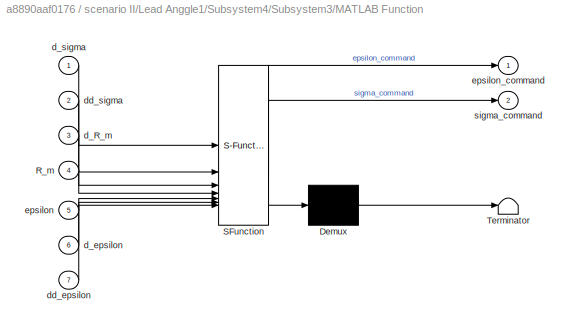
BLOCK [SubSystem] scenario II/Lead Anggle1/Subsystem4/Subsystem3/MATLAB Function
  ErrorFcn = Stateflow.Translate.translate
  LibrarySourceBlock = simulink/User-Defined\nFunctions/MATLAB Function
  PermitHierarchicalResolution = ExplicitOnly
  SFBlockType = MATLAB Function
  TreatAsAtomicUnit = on
BLOCK [Demux] scenario II/Lead Anggle1/Subsystem4/Subsystem3/MATLAB Function/ Demux 
  Outputs = 1
BLOCK [S-Function] scenario II/Lead Anggle1/Subsystem4/Subsystem3/MATLAB Function/ SFunction 
  EnableBusSupport = on
  FunctionName = sf_sfun
  PortCounts = [7 3]
  SFcnIsStateOwnerBlock = off
  SFunctionDeploymentMode = off
  Tag = Stateflow S-Function 4
BLOCK [Terminator] scenario II/Lead Anggle1/Subsystem4/Subsystem3/MATLAB Function/ Terminator 
BLOCK [Inport] scenario II/Lead Anggle1/Subsystem4/Subsystem3/MATLAB Function/R_m
  Port = 4
BLOCK [Inport] scenario II/Lead Anggle1/Subsystem4/Subsystem3/MATLAB Function/d_R_m
  Port = 3
BLOCK [Inport] scenario II/Lead Anggle1/Subsystem4/Subsystem3/MATLAB Function/d_epsilon
  Port = 6
BLOCK [Inport] scenario II/Lead Anggle1/Subsystem4/Subsystem3/MATLAB Function/d_sigma
BLOCK [Inport] scenario II/Lead Anggle1/Subsystem4/Subsystem3/MATLAB Function/dd_epsilon
  Port = 7
BLOCK [Inport] scenario II/Lead Anggle1/Subsystem4/Subsystem3/MATLAB Function/dd_sigma
  Port = 2
BLOCK [Inport] scenario II/Lead Anggle1/Subsystem4/Subsystem3/MATLAB Function/epsilon
  Port = 5
BLOCK [Outport] scenario II/Lead Anggle1/Subsystem4/Subsystem3/MATLAB Function/epsilon_command
BLOCK [Outport] scenario II/Lead Anggle1/Subsystem4/Subsystem3/MATLAB Function/sigma_command
  Port = 2
BLOCK [Product] scenario II/Lead Anggle1/Subsystem4/Subsystem3/Product
  Multiplication = Matrix(*)
BLOCK [Sqrt] scenario II/Lead Anggle1/Subsystem4/Subsystem3/Sqrt
BLOCK [Switch] scenario II/Lead Anggle1/Subsystem4/Subsystem3/Switch
  Criteria = u2 > Threshold
  InputSameDT = off
  SaturateOnIntegerOverflow = off
  Threshold = 0.2
BLOCK [Switch] scenario II/Lead Anggle1/Subsystem4/Subsystem3/Switch1
  Criteria = u2 > Threshold
  InputSameDT = off
  SaturateOnIntegerOverflow = off
  Threshold = 0.2
BLOCK [TransferFcn] scenario II/Lead Anggle1/Subsystem4/Subsystem3/Transfer Fcn
  Denominator = [1 100]
  Numerator = [100 0]
BLOCK [TransferFcn] scenario II/Lead Anggle1/Subsystem4/Subsystem3/Transfer Fcn1
  Denominator = [1 100]
  Numerator = [100 0]
BLOCK [TransferFcn] scenario II/Lead Anggle1/Subsystem4/Subsystem3/Transfer Fcn2
  Denominator = [1 100]
  Numerator = [100 0]
BLOCK [TransferFcn] scenario II/Lead Anggle1/Subsystem4/Subsystem3/Transfer Fcn3
  Denominator = [1 100]
  Numerator = [100 0]
BLOCK [TransferFcn] scenario II/Lead Anggle1/Subsystem4/Subsystem3/Transfer Fcn4
  Denominator = [1 100]
  Numerator = [100 0]
BLOCK [Math] scenario II/Lead Anggle1/Subsystem4/Subsystem3/Transpose
  Operator = transpose
BLOCK [Inport] scenario II/Lead Anggle1/Subsystem4/Subsystem3/epsilon
BLOCK [Outport] scenario II/Lead Anggle1/Subsystem4/Subsystem3/epsilon command
  Port = 2
BLOCK [Inport] scenario II/Lead Anggle1/Subsystem4/Subsystem3/sigma
  Port = 2
BLOCK [Outport] scenario II/Lead Anggle1/Subsystem4/Subsystem3/sigma command
BLOCK [Inport] scenario II/Lead Anggle1/Subsystem4/Subsystem3/target_state
  Port = 3
BLOCK [Inport] scenario II/Lead Anggle1/Subsystem4/epsilon
BLOCK [Outport] scenario II/Lead Anggle1/Subsystem4/epsilon command
  Port = 4
BLOCK [Outport] scenario II/Lead Anggle1/Subsystem4/epsilon phi
  Port = 2
BLOCK [Inport] scenario II/Lead Anggle1/Subsystem4/missle state
  Port = 4
BLOCK [Inport] scenario II/Lead Anggle1/Subsystem4/sigma
  Port = 2
BLOCK [Outport] scenario II/Lead Anggle1/Subsystem4/sigma command
  Port = 3
BLOCK [Outport] scenario II/Lead Anggle1/Subsystem4/sigma phi
BLOCK [Inport] scenario II/Lead Anggle1/Subsystem4/target state
  Port = 3
BLOCK [Sum] scenario II/Lead Anggle1/Sum
  Inputs = |++
BLOCK [Sum] scenario II/Lead Anggle1/Sum1
  Inputs = ++|
  NameLocation = right
BLOCK [ToWorkspace] scenario II/Lead Anggle1/To Workspace6
  FixptAsFi = on
  MaxDataPoints = inf
  SampleTime = -1
  Save2DSignal = 2-D array (concatenate along first dimension)
  SaveFormat = Timeseries
  VariableName = command_lead_angle1
BLOCK [Outport] scenario II/Lead Anggle1/ay, az
BLOCK [Inport] scenario II/Lead Anggle1/missle_state
BLOCK [Inport] scenario II/Lead Anggle1/target_state
  Port = 2
BLOCK [SubSystem] scenario II/Miss Distance2
BLOCK [Logic] scenario II/Miss Distance2/AND
  AllPortsSameDT = off
  IconShape = distinctive
  OutDataTypeStr = boolean
BLOCK [Sum] scenario II/Miss Distance2/Add
  IconShape = rectangular
  Inputs = +-
BLOCK [Constant] scenario II/Miss Distance2/Constant
  Value = 0
BLOCK [Demux] scenario II/Miss Distance2/Demux
  Outputs = 3
BLOCK [Reference] scenario II/Miss Distance2/MinMax Running Resettable  REF=simulink/Math
Operations/MinMax
Running
Resettable
  SourceBlock = simulink/Math\nOperations/MinMax\nRunning\nResettable
  SourceType = MinMax Running Resettable
BLOCK [Math] scenario II/Miss Distance2/Square
  Operator = square
BLOCK [Sqrt] scenario II/Miss Distance2/Square Root
BLOCK [Outport] scenario II/Miss Distance2/Stop
  Port = 3
BLOCK [Sum] scenario II/Miss Distance2/Sum of Elements
  IconShape = rectangular
  Inputs = +
BLOCK [Terminator] scenario II/Miss Distance2/Terminator
BLOCK [ToWorkspace] scenario II/Miss Distance2/To Workspace6
  FixptAsFi = on
  MaxDataPoints = inf
  SampleTime = -1
  Save2DSignal = 2-D array (concatenate along first dimension)
  SaveFormat = Timeseries
  VariableName = distance_lead_angle1
BLOCK [Outport] scenario II/Miss Distance2/distance
BLOCK [Outport] scenario II/Miss Distance2/miss distance
  Port = 2
BLOCK [Inport] scenario II/Miss Distance2/missle
BLOCK [SubSystem] scenario II/Miss Distance2/nearing check
BLOCK [SubSystem] scenario II/Miss Distance2/nearing check y
BLOCK [Sum] scenario II/Miss Distance2/nearing check y/Add1
  IconShape = rectangular
  Inputs = -+
BLOCK [Constant] scenario II/Miss Distance2/nearing check y/Constant3
  Value = 0
BLOCK [Constant] scenario II/Miss Distance2/nearing check y/Constant4
BLOCK [Delay] scenario II/Miss Distance2/nearing check y/Delay
  DelayLength = 1
  InitialCondition = inf
  InputPortMap = u0
BLOCK [Switch] scenario II/Miss Distance2/nearing check y/Switch
  Criteria = u2 > Threshold
  InputSameDT = off
  SaturateOnIntegerOverflow = off
BLOCK [Inport] scenario II/Miss Distance2/nearing check y/z
BLOCK [Outport] scenario II/Miss Distance2/nearing check y/z stop logic
BLOCK [Sum] scenario II/Miss Distance2/nearing check/Add1
  IconShape = rectangular
  Inputs = -+
BLOCK [Constant] scenario II/Miss Distance2/nearing check/Constant3
  Value = 0
BLOCK [Constant] scenario II/Miss Distance2/nearing check/Constant4
BLOCK [Delay] scenario II/Miss Distance2/nearing check/Delay
  DelayLength = 1
  InitialCondition = inf
  InputPortMap = u0
BLOCK [Switch] scenario II/Miss Distance2/nearing check/Switch
  Criteria = u2 > Threshold
  InputSameDT = off
  SaturateOnIntegerOverflow = off
BLOCK [Inport] scenario II/Miss Distance2/nearing check/x
BLOCK [Outport] scenario II/Miss Distance2/nearing check/x stop logic
BLOCK [Inport] scenario II/Miss Distance2/target
  Port = 2
BLOCK [SubSystem] scenario II/Missile 2
BLOCK [Integrator] scenario II/Missile 2/Integrator
  InitialCondition = d_state_m
BLOCK [Integrator] scenario II/Missile 2/Integrator1
  InitialCondition = state_m0
BLOCK [Integrator] scenario II/Missile 2/Integrator2
  InitialCondition = attitude_m0
BLOCK [SubSystem] scenario II/Missile 2/MATLAB Function
  ErrorFcn = Stateflow.Translate.translate
  LibrarySourceBlock = simulink/User-Defined\nFunctions/MATLAB Function
  PermitHierarchicalResolution = ExplicitOnly
  SFBlockType = MATLAB Function
  TreatAsAtomicUnit = on
BLOCK [Demux] scenario II/Missile 2/MATLAB Function/ Demux 
  Outputs = 1
BLOCK [S-Function] scenario II/Missile 2/MATLAB Function/ SFunction 
  EnableBusSupport = on
  FunctionName = sf_sfun
  PortCounts = [4 3]
  SFcnIsStateOwnerBlock = off
  SFunctionDeploymentMode = off
  Tag = Stateflow S-Function 7
BLOCK [Terminator] scenario II/Missile 2/MATLAB Function/ Terminator 
BLOCK [Inport] scenario II/Missile 2/MATLAB Function/V
  Port = 2
BLOCK [Inport] scenario II/Missile 2/MATLAB Function/a
BLOCK [Inport] scenario II/Missile 2/MATLAB Function/attitude
  Port = 4
BLOCK [Outport] scenario II/Missile 2/MATLAB Function/dd_state
BLOCK [Outport] scenario II/Missile 2/MATLAB Function/dot_attitude
  Port = 2
BLOCK [Inport] scenario II/Missile 2/MATLAB Function/g_effect
  Port = 3
BLOCK [Product] scenario II/Missile 2/Product
  Multiplication = Matrix(*)
BLOCK [Selector] scenario II/Missile 2/Selector
  IndexOptions = Index vector (dialog)
  Indices = [1]
  InputPortWidth = 3
  OutputSizes = 1
BLOCK [SubSystem] scenario II/Missile 2/Transformation Matrix
  ErrorFcn = Stateflow.Translate.translate
  LibrarySourceBlock = simulink/User-Defined\nFunctions/MATLAB Function
  PermitHierarchicalResolution = ExplicitOnly
  SFBlockType = MATLAB Function
  TreatAsAtomicUnit = on
BLOCK [Demux] scenario II/Missile 2/Transformation Matrix/ Demux 
  Outputs = 1
BLOCK [S-Function] scenario II/Missile 2/Transformation Matrix/ SFunction 
  EnableBusSupport = on
  FunctionName = sf_sfun
  PortCounts = [1 2]
  SFcnIsStateOwnerBlock = off
  SFunctionDeploymentMode = off
  Tag = Stateflow S-Function 8
BLOCK [Terminator] scenario II/Missile 2/Transformation Matrix/ Terminator 
BLOCK [Outport] scenario II/Missile 2/Transformation Matrix/T_GV
BLOCK [Inport] scenario II/Missile 2/Transformation Matrix/attitude
BLOCK [Outport] scenario II/Missile 2/V
  Port = 3
BLOCK [Inport] scenario II/Missile 2/a
BLOCK [SubSystem] scenario II/Missile 2/a model
BLOCK [Demux] scenario II/Missile 2/a model/Demux
  Outputs = 3
BLOCK [Mux] scenario II/Missile 2/a model/Mux
  DisplayOption = bar
  Inputs = 3
BLOCK [TransferFcn] scenario II/Missile 2/a model/Transfer Fcn
  Denominator = [1 30 200]
  Numerator = [30 200]
BLOCK [TransferFcn] scenario II/Missile 2/a model/Transfer Fcn1
  Denominator = [1 30 200]
  Numerator = [30 200]
BLOCK [Outport] scenario II/Missile 2/a model/a
BLOCK [Inport] scenario II/Missile 2/a model/ac
BLOCK [Outport] scenario II/Missile 2/attitude
  Port = 2
BLOCK [Inport] scenario II/Missile 2/g_effect
  Port = 2
BLOCK [Outport] scenario II/Missile 2/state
BLOCK [Mux] scenario II/Mux2
  DisplayOption = bar
  Inputs = 2
BLOCK [Outport] scenario II/Stop
BLOCK [SubSystem] scenario II/Target2
BLOCK [Integrator] scenario II/Target2/Integrator
  InitialCondition = d_state_t
BLOCK [Integrator] scenario II/Target2/Integrator1
  InitialCondition = state_t0
BLOCK [Integrator] scenario II/Target2/Integrator2
  InitialCondition = attitude_t0
BLOCK [SubSystem] scenario II/Target2/MATLAB Function
  ErrorFcn = Stateflow.Translate.translate
  LibrarySourceBlock = simulink/User-Defined\nFunctions/MATLAB Function
  PermitHierarchicalResolution = ExplicitOnly
  SFBlockType = MATLAB Function
  TreatAsAtomicUnit = on
BLOCK [Demux] scenario II/Target2/MATLAB Function/ Demux 
  Outputs = 1
BLOCK [S-Function] scenario II/Target2/MATLAB Function/ SFunction 
  EnableBusSupport = on
  FunctionName = sf_sfun
  PortCounts = [4 3]
  SFcnIsStateOwnerBlock = off
  SFunctionDeploymentMode = off
  Tag = Stateflow S-Function 12
BLOCK [Terminator] scenario II/Target2/MATLAB Function/ Terminator 
BLOCK [Inport] scenario II/Target2/MATLAB Function/V
  Port = 2
BLOCK [Inport] scenario II/Target2/MATLAB Function/a
BLOCK [Inport] scenario II/Target2/MATLAB Function/attitude
  Port = 4
BLOCK [Outport] scenario II/Target2/MATLAB Function/dd_state
BLOCK [Outport] scenario II/Target2/MATLAB Function/dot_attitude
  Port = 2
BLOCK [Inport] scenario II/Target2/MATLAB Function/g_effect
  Port = 3
BLOCK [Product] scenario II/Target2/Product
  Multiplication = Matrix(*)
BLOCK [Selector] scenario II/Target2/Selector
  IndexOptions = Index vector (dialog)
  Indices = [1]
  InputPortWidth = 3
  OutputSizes = 1
BLOCK [SubSystem] scenario II/Target2/Transformation Matrix
  ErrorFcn = Stateflow.Translate.translate
  LibrarySourceBlock = simulink/User-Defined\nFunctions/MATLAB Function
  PermitHierarchicalResolution = ExplicitOnly
  SFBlockType = MATLAB Function
  TreatAsAtomicUnit = on
BLOCK [Demux] scenario II/Target2/Transformation Matrix/ Demux 
  Outputs = 1
BLOCK [S-Function] scenario II/Target2/Transformation Matrix/ SFunction 
  EnableBusSupport = on
  FunctionName = sf_sfun
  PortCounts = [1 2]
  SFcnIsStateOwnerBlock = off
  SFunctionDeploymentMode = off
  Tag = Stateflow S-Function 13
BLOCK [Terminator] scenario II/Target2/Transformation Matrix/ Terminator 
BLOCK [Outport] scenario II/Target2/Transformation Matrix/T_GV
BLOCK [Inport] scenario II/Target2/Transformation Matrix/attitude
BLOCK [Outport] scenario II/Target2/V
  Port = 3
BLOCK [Inport] scenario II/Target2/ac
BLOCK [Outport] scenario II/Target2/attitude
  Port = 2
BLOCK [Inport] scenario II/Target2/g_effect
  Port = 2
BLOCK [Outport] scenario II/Target2/state
BLOCK [ToWorkspace] scenario II/To Workspace1
  Commented = on
  FixptAsFi = on
  MaxDataPoints = inf
  SampleTime = -1
  Save2DSignal = 2-D array (concatenate along first dimension)
  SaveFormat = Timeseries
  VariableName = missle_attitude
BLOCK [ToWorkspace] scenario II/To Workspace14
  Commented = on
  FixptAsFi = on
  MaxDataPoints = inf
  SampleTime = -1
  Save2DSignal = 2-D array (concatenate along first dimension)
  SaveFormat = Timeseries
  VariableName = target_attitude1
BLOCK [ToWorkspace] scenario II/To Workspace2
  Commented = on
  FixptAsFi = on
  MaxDataPoints = inf
  SampleTime = -1
  Save2DSignal = 2-D array (concatenate along first dimension)
  SaveFormat = Timeseries
  VariableName = V_missle
BLOCK [ToWorkspace] scenario II/To Workspace3
  Commented = on
  FixptAsFi = on
  MaxDataPoints = inf
  SampleTime = -1
  Save2DSignal = 2-D array (concatenate along first dimension)
  SaveFormat = Timeseries
  VariableName = V_target
BLOCK [ToWorkspace] scenario II/To Workspace4
  Commented = on
  FixptAsFi = on
  MaxDataPoints = inf
  SampleTime = -1
  Save2DSignal = 2-D array (concatenate along first dimension)
  SaveFormat = Timeseries
  VariableName = target_distance
BLOCK [ToWorkspace] scenario II/To Workspace5
  FixptAsFi = on
  MaxDataPoints = inf
  SampleTime = -1
  Save2DSignal = 2-D array (concatenate along first dimension)
  SaveFormat = Timeseries
  VariableName = target_state_lead_angle1
BLOCK [ToWorkspace] scenario II/To Workspace6
  FixptAsFi = on
  MaxDataPoints = inf
  SampleTime = -1
  Save2DSignal = 2-D array (concatenate along first dimension)
  SaveFormat = Timeseries
  VariableName = missle_state_lead_angle1
BLOCK [SubSystem] scenario II/acceleration2
BLOCK [Sum] scenario II/acceleration2/Add
  IconShape = rectangular
BLOCK [Sum] scenario II/acceleration2/Add1
  IconShape = rectangular
  Inputs = +-
BLOCK [Constant] scenario II/acceleration2/Constant1
  Value = 1.5e-4
BLOCK [Gain] scenario II/acceleration2/Gain
  Gain = 300
BLOCK [Product] scenario II/acceleration2/Product
BLOCK [Math] scenario II/acceleration2/Square
  Operator = square
BLOCK [Step] scenario II/acceleration2/Step
  After = -1
  SampleTime = 0
  Time = 3
BLOCK [Step] scenario II/acceleration2/Step1
  SampleTime = 0
  Time = 0
BLOCK [Inport] scenario II/acceleration2/V
BLOCK [Outport] scenario II/acceleration2/ax
BLOCK [SubSystem] scenario III
BLOCK [Constant] scenario III/Constant7
BLOCK [Constant] scenario III/Constant8
  Value = [0; 0; -10]
BLOCK [Constant] scenario III/Constant9
  Value = 0
BLOCK [Display] scenario III/Display3
  Decimation = 1
BLOCK [SubSystem] scenario III/Lead Anggle2
BLOCK [SubSystem] scenario III/Lead Anggle2/MATLAB Function
  ErrorFcn = Stateflow.Translate.translate
  LibrarySourceBlock = simulink/User-Defined\nFunctions/MATLAB Function
  PermitHierarchicalResolution = ExplicitOnly
  SFBlockType = MATLAB Function
  TreatAsAtomicUnit = on
BLOCK [Demux] scenario III/Lead Anggle2/MATLAB Function/ Demux 
  Outputs = 1
BLOCK [S-Function] scenario III/Lead Anggle2/MATLAB Function/ SFunction 
  EnableBusSupport = on
  FunctionName = sf_sfun
  PortCounts = [4 5]
  SFcnIsStateOwnerBlock = off
  SFunctionDeploymentMode = off
  Tag = Stateflow S-Function 17
BLOCK [Terminator] scenario III/Lead Anggle2/MATLAB Function/ Terminator 
BLOCK [Outport] scenario III/Lead Anggle2/MATLAB Function/d_epsilon
  Port = 2
BLOCK [Outport] scenario III/Lead Anggle2/MATLAB Function/d_sigma
BLOCK [Inport] scenario III/Lead Anggle2/MATLAB Function/epsilon_phi
  Port = 4
BLOCK [Outport] scenario III/Lead Anggle2/MATLAB Function/epsilon_t
  Port = 3
BLOCK [Inport] scenario III/Lead Anggle2/MATLAB Function/missle_state
BLOCK [Inport] scenario III/Lead Anggle2/MATLAB Function/sigma_phi
  Port = 3
BLOCK [Outport] scenario III/Lead Anggle2/MATLAB Function/sigma_t
  Port = 4
BLOCK [Inport] scenario III/Lead Anggle2/MATLAB Function/target_state
  Port = 2
BLOCK [SubSystem] scenario III/Lead Anggle2/MATLAB Function1
  ErrorFcn = Stateflow.Translate.translate
  LibrarySourceBlock = simulink/User-Defined\nFunctions/MATLAB Function
  PermitHierarchicalResolution = ExplicitOnly
  SFBlockType = MATLAB Function
  TreatAsAtomicUnit = on
BLOCK [Demux] scenario III/Lead Anggle2/MATLAB Function1/ Demux 
  Outputs = 1
BLOCK [S-Function] scenario III/Lead Anggle2/MATLAB Function1/ SFunction 
  EnableBusSupport = on
  FunctionName = sf_sfun
  PortCounts = [1 2]
  SFcnIsStateOwnerBlock = off
  SFunctionDeploymentMode = off
  Tag = Stateflow S-Function 18
BLOCK [Terminator] scenario III/Lead Anggle2/MATLAB Function1/ Terminator 
BLOCK [Outport] scenario III/Lead Anggle2/MATLAB Function1/g_command
BLOCK [Inport] scenario III/Lead Anggle2/MATLAB Function1/target_state
BLOCK [Mux] scenario III/Lead Anggle2/Mux
  DisplayOption = bar
  Inputs = 2
BLOCK [Saturate] scenario III/Lead Anggle2/Saturation
  LowerLimit = -5*9.81
  UpperLimit = 5*9.81
BLOCK [SubSystem] scenario III/Lead Anggle2/Subsystem
BLOCK [Gain] scenario III/Lead Anggle2/Subsystem/Gain
  Gain = k_sigma_lead_angle
BLOCK [Sum] scenario III/Lead Anggle2/Subsystem/Sum
  Inputs = +|+
BLOCK [TransferFcn] scenario III/Lead Anggle2/Subsystem/Transfer Fcn
  Denominator = [1 100]
  Numerator = [1000 0]
BLOCK [Outport] scenario III/Lead Anggle2/Subsystem/acy
BLOCK [Inport] scenario III/Lead Anggle2/Subsystem/d_sigma
BLOCK [SubSystem] scenario III/Lead Anggle2/Subsystem1
BLOCK [Gain] scenario III/Lead Anggle2/Subsystem1/Gain1
  Gain = k_epsilon_lead_angle
BLOCK [Sum] scenario III/Lead Anggle2/Subsystem1/Sum
  Inputs = +|+
BLOCK [TransferFcn] scenario III/Lead Anggle2/Subsystem1/Transfer Fcn
  Denominator = [1 100]
  Numerator = [1000 0]
BLOCK [Outport] scenario III/Lead Anggle2/Subsystem1/azc
BLOCK [Inport] scenario III/Lead Anggle2/Subsystem1/d_epsilon
BLOCK [SubSystem] scenario III/Lead Anggle2/Subsystem4
BLOCK [Sum] scenario III/Lead Anggle2/Subsystem4/Add
  IconShape = rectangular
  Inputs = -+
BLOCK [Delay] scenario III/Lead Anggle2/Subsystem4/Delay
  DelayLength = 1
  InputPortMap = u0
BLOCK [Delay] scenario III/Lead Anggle2/Subsystem4/Delay1
  DelayLength = 1
  InputPortMap = u0
BLOCK [SubSystem] scenario III/Lead Anggle2/Subsystem4/Subsystem2
BLOCK [SubSystem] scenario III/Lead Anggle2/Subsystem4/Subsystem2/MATLAB Function
  ErrorFcn = Stateflow.Translate.translate
  LibrarySourceBlock = simulink/User-Defined\nFunctions/MATLAB Function
  PermitHierarchicalResolution = ExplicitOnly
  SFBlockType = MATLAB Function
  TreatAsAtomicUnit = on
BLOCK [Demux] scenario III/Lead Anggle2/Subsystem4/Subsystem2/MATLAB Function/ Demux 
  Outputs = 1
BLOCK [S-Function] scenario III/Lead Anggle2/Subsystem4/Subsystem2/MATLAB Function/ SFunction 
  EnableBusSupport = on
  FunctionName = sf_sfun
  PortCounts = [4 3]
  SFcnIsStateOwnerBlock = off
  SFunctionDeploymentMode = off
  Tag = Stateflow S-Function 19
BLOCK [Terminator] scenario III/Lead Anggle2/Subsystem4/Subsystem2/MATLAB Function/ Terminator 
BLOCK [Inport] scenario III/Lead Anggle2/Subsystem4/Subsystem2/MATLAB Function/d_delta_R
  Port = 2
BLOCK [Inport] scenario III/Lead Anggle2/Subsystem4/Subsystem2/MATLAB Function/d_epsilon
  Port = 4
BLOCK [Inport] scenario III/Lead Anggle2/Subsystem4/Subsystem2/MATLAB Function/d_sigma
BLOCK [Inport] scenario III/Lead Anggle2/Subsystem4/Subsystem2/MATLAB Function/delta_R
  Port = 3
BLOCK [Outport] scenario III/Lead Anggle2/Subsystem4/Subsystem2/MATLAB Function/epsilon_phi
BLOCK [Outport] scenario III/Lead Anggle2/Subsystem4/Subsystem2/MATLAB Function/sigma_phi
  Port = 2
BLOCK [Product] scenario III/Lead Anggle2/Subsystem4/Subsystem2/Product
  Multiplication = Matrix(*)
BLOCK [Sqrt] scenario III/Lead Anggle2/Subsystem4/Subsystem2/Sqrt
BLOCK [TransferFcn] scenario III/Lead Anggle2/Subsystem4/Subsystem2/Transfer Fcn
  Denominator = [1 100]
  Numerator = [100 0]
BLOCK [TransferFcn] scenario III/Lead Anggle2/Subsystem4/Subsystem2/Transfer Fcn2
  Denominator = [1 100]
  Numerator = [100 0]
BLOCK [TransferFcn] scenario III/Lead Anggle2/Subsystem4/Subsystem2/Transfer Fcn4
  Denominator = [1 100]
  Numerator = [100 0]
BLOCK [Math] scenario III/Lead Anggle2/Subsystem4/Subsystem2/Transpose
  Operator = transpose
BLOCK [Inport] scenario III/Lead Anggle2/Subsystem4/Subsystem2/delta_state
  Port = 3
BLOCK [Inport] scenario III/Lead Anggle2/Subsystem4/Subsystem2/epsilon
BLOCK [Outport] scenario III/Lead Anggle2/Subsystem4/Subsystem2/epsilon phi
  Port = 2
BLOCK [Inport] scenario III/Lead Anggle2/Subsystem4/Subsystem2/sigma
  Port = 2
BLOCK [Outport] scenario III/Lead Anggle2/Subsystem4/Subsystem2/sigma phi
BLOCK [SubSystem] scenario III/Lead Anggle2/Subsystem4/Subsystem3
BLOCK [Clock] scenario III/Lead Anggle2/Subsystem4/Subsystem3/Clock
BLOCK [Constant] scenario III/Lead Anggle2/Subsystem4/Subsystem3/Constant
  Value = 0
BLOCK [SubSystem] scenario III/Lead Anggle2/Subsystem4/Subsystem3/MATLAB Function
  ErrorFcn = Stateflow.Translate.translate
  LibrarySourceBlock = simulink/User-Defined\nFunctions/MATLAB Function
  PermitHierarchicalResolution = ExplicitOnly
  SFBlockType = MATLAB Function
  TreatAsAtomicUnit = on
BLOCK [Demux] scenario III/Lead Anggle2/Subsystem4/Subsystem3/MATLAB Function/ Demux 
  Outputs = 1
BLOCK [S-Function] scenario III/Lead Anggle2/Subsystem4/Subsystem3/MATLAB Function/ SFunction 
  EnableBusSupport = on
  FunctionName = sf_sfun
  PortCounts = [7 3]
  SFcnIsStateOwnerBlock = off
  SFunctionDeploymentMode = off
  Tag = Stateflow S-Function 20
BLOCK [Terminator] scenario III/Lead Anggle2/Subsystem4/Subsystem3/MATLAB Function/ Terminator 
BLOCK [Inport] scenario III/Lead Anggle2/Subsystem4/Subsystem3/MATLAB Function/R_m
  Port = 4
BLOCK [Inport] scenario III/Lead Anggle2/Subsystem4/Subsystem3/MATLAB Function/d_R_m
  Port = 3
BLOCK [Inport] scenario III/Lead Anggle2/Subsystem4/Subsystem3/MATLAB Function/d_epsilon
  Port = 6
BLOCK [Inport] scenario III/Lead Anggle2/Subsystem4/Subsystem3/MATLAB Function/d_sigma
BLOCK [Inport] scenario III/Lead Anggle2/Subsystem4/Subsystem3/MATLAB Function/dd_epsilon
  Port = 7
BLOCK [Inport] scenario III/Lead Anggle2/Subsystem4/Subsystem3/MATLAB Function/dd_sigma
  Port = 2
BLOCK [Inport] scenario III/Lead Anggle2/Subsystem4/Subsystem3/MATLAB Function/epsilon
  Port = 5
BLOCK [Outport] scenario III/Lead Anggle2/Subsystem4/Subsystem3/MATLAB Function/epsilon_command
BLOCK [Outport] scenario III/Lead Anggle2/Subsystem4/Subsystem3/MATLAB Function/sigma_command
  Port = 2
BLOCK [Product] scenario III/Lead Anggle2/Subsystem4/Subsystem3/Product
  Multiplication = Matrix(*)
BLOCK [Sqrt] scenario III/Lead Anggle2/Subsystem4/Subsystem3/Sqrt
BLOCK [Switch] scenario III/Lead Anggle2/Subsystem4/Subsystem3/Switch
  Criteria = u2 > Threshold
  InputSameDT = off
  SaturateOnIntegerOverflow = off
  Threshold = 0.2
BLOCK [Switch] scenario III/Lead Anggle2/Subsystem4/Subsystem3/Switch1
  Criteria = u2 > Threshold
  InputSameDT = off
  SaturateOnIntegerOverflow = off
  Threshold = 0.2
BLOCK [TransferFcn] scenario III/Lead Anggle2/Subsystem4/Subsystem3/Transfer Fcn
  Denominator = [1 100]
  Numerator = [100 0]
BLOCK [TransferFcn] scenario III/Lead Anggle2/Subsystem4/Subsystem3/Transfer Fcn1
  Denominator = [1 100]
  Numerator = [100 0]
BLOCK [TransferFcn] scenario III/Lead Anggle2/Subsystem4/Subsystem3/Transfer Fcn2
  Denominator = [1 100]
  Numerator = [100 0]
BLOCK [TransferFcn] scenario III/Lead Anggle2/Subsystem4/Subsystem3/Transfer Fcn3
  Denominator = [1 100]
  Numerator = [100 0]
BLOCK [TransferFcn] scenario III/Lead Anggle2/Subsystem4/Subsystem3/Transfer Fcn4
  Denominator = [1 100]
  Numerator = [100 0]
BLOCK [Math] scenario III/Lead Anggle2/Subsystem4/Subsystem3/Transpose
  Operator = transpose
BLOCK [Inport] scenario III/Lead Anggle2/Subsystem4/Subsystem3/epsilon
BLOCK [Outport] scenario III/Lead Anggle2/Subsystem4/Subsystem3/epsilon command
  Port = 2
BLOCK [Inport] scenario III/Lead Anggle2/Subsystem4/Subsystem3/sigma
  Port = 2
BLOCK [Outport] scenario III/Lead Anggle2/Subsystem4/Subsystem3/sigma command
BLOCK [Inport] scenario III/Lead Anggle2/Subsystem4/Subsystem3/target_state
  Port = 3
BLOCK [Inport] scenario III/Lead Anggle2/Subsystem4/epsilon
BLOCK [Outport] scenario III/Lead Anggle2/Subsystem4/epsilon command
  Port = 4
BLOCK [Outport] scenario III/Lead Anggle2/Subsystem4/epsilon phi
  Port = 2
BLOCK [Inport] scenario III/Lead Anggle2/Subsystem4/missle state
  Port = 4
BLOCK [Inport] scenario III/Lead Anggle2/Subsystem4/sigma
  Port = 2
BLOCK [Outport] scenario III/Lead Anggle2/Subsystem4/sigma command
  Port = 3
BLOCK [Outport] scenario III/Lead Anggle2/Subsystem4/sigma phi
BLOCK [Inport] scenario III/Lead Anggle2/Subsystem4/target state
  Port = 3
BLOCK [Sum] scenario III/Lead Anggle2/Sum
  Inputs = |++
BLOCK [Sum] scenario III/Lead Anggle2/Sum1
  Inputs = ++|
  NameLocation = right
BLOCK [ToWorkspace] scenario III/Lead Anggle2/To Workspace6
  FixptAsFi = on
  MaxDataPoints = inf
  SampleTime = -1
  Save2DSignal = 2-D array (concatenate along first dimension)
  SaveFormat = Timeseries
  VariableName = command_lead_angle2
BLOCK [Outport] scenario III/Lead Anggle2/ay, az
BLOCK [Inport] scenario III/Lead Anggle2/missle_state
BLOCK [Inport] scenario III/Lead Anggle2/target_state
  Port = 2
BLOCK [SubSystem] scenario III/Miss Distance3
BLOCK [Logic] scenario III/Miss Distance3/AND
  AllPortsSameDT = off
  IconShape = distinctive
  OutDataTypeStr = boolean
BLOCK [Sum] scenario III/Miss Distance3/Add
  IconShape = rectangular
  Inputs = +-
BLOCK [Constant] scenario III/Miss Distance3/Constant
  Value = 0
BLOCK [Demux] scenario III/Miss Distance3/Demux
  Outputs = 3
BLOCK [Reference] scenario III/Miss Distance3/MinMax Running Resettable  REF=simulink/Math
Operations/MinMax
Running
Resettable
  SourceBlock = simulink/Math\nOperations/MinMax\nRunning\nResettable
  SourceType = MinMax Running Resettable
BLOCK [Math] scenario III/Miss Distance3/Square
  Operator = square
BLOCK [Sqrt] scenario III/Miss Distance3/Square Root
BLOCK [Outport] scenario III/Miss Distance3/Stop
  Port = 3
BLOCK [Sum] scenario III/Miss Distance3/Sum of Elements
  IconShape = rectangular
  Inputs = +
BLOCK [Terminator] scenario III/Miss Distance3/Terminator
BLOCK [ToWorkspace] scenario III/Miss Distance3/To Workspace6
  FixptAsFi = on
  MaxDataPoints = inf
  SampleTime = -1
  Save2DSignal = 2-D array (concatenate along first dimension)
  SaveFormat = Timeseries
  VariableName = distance_lead_angle2
BLOCK [Outport] scenario III/Miss Distance3/distance
BLOCK [Outport] scenario III/Miss Distance3/miss distance
  Port = 2
BLOCK [Inport] scenario III/Miss Distance3/missle
BLOCK [SubSystem] scenario III/Miss Distance3/nearing check
BLOCK [SubSystem] scenario III/Miss Distance3/nearing check y
BLOCK [Sum] scenario III/Miss Distance3/nearing check y/Add1
  IconShape = rectangular
  Inputs = -+
BLOCK [Constant] scenario III/Miss Distance3/nearing check y/Constant3
  Value = 0
BLOCK [Constant] scenario III/Miss Distance3/nearing check y/Constant4
BLOCK [Delay] scenario III/Miss Distance3/nearing check y/Delay
  DelayLength = 1
  InitialCondition = inf
  InputPortMap = u0
BLOCK [Switch] scenario III/Miss Distance3/nearing check y/Switch
  Criteria = u2 > Threshold
  InputSameDT = off
  SaturateOnIntegerOverflow = off
BLOCK [Inport] scenario III/Miss Distance3/nearing check y/z
BLOCK [Outport] scenario III/Miss Distance3/nearing check y/z stop logic
BLOCK [Sum] scenario III/Miss Distance3/nearing check/Add1
  IconShape = rectangular
  Inputs = -+
BLOCK [Constant] scenario III/Miss Distance3/nearing check/Constant3
  Value = 0
BLOCK [Constant] scenario III/Miss Distance3/nearing check/Constant4
BLOCK [Delay] scenario III/Miss Distance3/nearing check/Delay
  DelayLength = 1
  InitialCondition = inf
  InputPortMap = u0
BLOCK [Switch] scenario III/Miss Distance3/nearing check/Switch
  Criteria = u2 > Threshold
  InputSameDT = off
  SaturateOnIntegerOverflow = off
BLOCK [Inport] scenario III/Miss Distance3/nearing check/x
BLOCK [Outport] scenario III/Miss Distance3/nearing check/x stop logic
BLOCK [Inport] scenario III/Miss Distance3/target
  Port = 2
BLOCK [SubSystem] scenario III/Missile 3
BLOCK [Integrator] scenario III/Missile 3/Integrator
  InitialCondition = d_state_m
BLOCK [Integrator] scenario III/Missile 3/Integrator1
  InitialCondition = state_m0
BLOCK [Integrator] scenario III/Missile 3/Integrator2
  InitialCondition = attitude_m0
BLOCK [SubSystem] scenario III/Missile 3/MATLAB Function
  ErrorFcn = Stateflow.Translate.translate
  LibrarySourceBlock = simulink/User-Defined\nFunctions/MATLAB Function
  PermitHierarchicalResolution = ExplicitOnly
  SFBlockType = MATLAB Function
  TreatAsAtomicUnit = on
BLOCK [Demux] scenario III/Missile 3/MATLAB Function/ Demux 
  Outputs = 1
BLOCK [S-Function] scenario III/Missile 3/MATLAB Function/ SFunction 
  EnableBusSupport = on
  FunctionName = sf_sfun
  PortCounts = [4 3]
  SFcnIsStateOwnerBlock = off
  SFunctionDeploymentMode = off
  Tag = Stateflow S-Function 21
BLOCK [Terminator] scenario III/Missile 3/MATLAB Function/ Terminator 
BLOCK [Inport] scenario III/Missile 3/MATLAB Function/V
  Port = 2
BLOCK [Inport] scenario III/Missile 3/MATLAB Function/a
BLOCK [Inport] scenario III/Missile 3/MATLAB Function/attitude
  Port = 4
BLOCK [Outport] scenario III/Missile 3/MATLAB Function/dd_state
BLOCK [Outport] scenario III/Missile 3/MATLAB Function/dot_attitude
  Port = 2
BLOCK [Inport] scenario III/Missile 3/MATLAB Function/g_effect
  Port = 3
BLOCK [Product] scenario III/Missile 3/Product
  Multiplication = Matrix(*)
BLOCK [Selector] scenario III/Missile 3/Selector
  IndexOptions = Index vector (dialog)
  Indices = [1]
  InputPortWidth = 3
  OutputSizes = 1
BLOCK [SubSystem] scenario III/Missile 3/Transformation Matrix
  ErrorFcn = Stateflow.Translate.translate
  LibrarySourceBlock = simulink/User-Defined\nFunctions/MATLAB Function
  PermitHierarchicalResolution = ExplicitOnly
  SFBlockType = MATLAB Function
  TreatAsAtomicUnit = on
BLOCK [Demux] scenario III/Missile 3/Transformation Matrix/ Demux 
  Outputs = 1
BLOCK [S-Function] scenario III/Missile 3/Transformation Matrix/ SFunction 
  EnableBusSupport = on
  FunctionName = sf_sfun
  PortCounts = [1 2]
  SFcnIsStateOwnerBlock = off
  SFunctionDeploymentMode = off
  Tag = Stateflow S-Function 22
BLOCK [Terminator] scenario III/Missile 3/Transformation Matrix/ Terminator 
BLOCK [Outport] scenario III/Missile 3/Transformation Matrix/T_GV
BLOCK [Inport] scenario III/Missile 3/Transformation Matrix/attitude
BLOCK [Outport] scenario III/Missile 3/V
  Port = 3
BLOCK [Inport] scenario III/Missile 3/a
BLOCK [SubSystem] scenario III/Missile 3/a model
BLOCK [Demux] scenario III/Missile 3/a model/Demux
  Outputs = 3
BLOCK [Mux] scenario III/Missile 3/a model/Mux
  DisplayOption = bar
  Inputs = 3
BLOCK [TransferFcn] scenario III/Missile 3/a model/Transfer Fcn
  Denominator = [1 30 200]
  Numerator = [30 200]
BLOCK [TransferFcn] scenario III/Missile 3/a model/Transfer Fcn1
  Denominator = [1 30 200]
  Numerator = [30 200]
BLOCK [Outport] scenario III/Missile 3/a model/a
BLOCK [Inport] scenario III/Missile 3/a model/ac
BLOCK [Outport] scenario III/Missile 3/attitude
  Port = 2
BLOCK [Inport] scenario III/Missile 3/g_effect
  Port = 2
BLOCK [Outport] scenario III/Missile 3/state
BLOCK [Mux] scenario III/Mux3
  DisplayOption = bar
  Inputs = 2
BLOCK [Outport] scenario III/Stop
BLOCK [SubSystem] scenario III/Target3
BLOCK [Integrator] scenario III/Target3/Integrator
  InitialCondition = d_state_t
BLOCK [Integrator] scenario III/Target3/Integrator1
  InitialCondition = state_t0
BLOCK [Integrator] scenario III/Target3/Integrator2
  InitialCondition = attitude_t0
BLOCK [SubSystem] scenario III/Target3/MATLAB Function
  ErrorFcn = Stateflow.Translate.translate
  LibrarySourceBlock = simulink/User-Defined\nFunctions/MATLAB Function
  PermitHierarchicalResolution = ExplicitOnly
  SFBlockType = MATLAB Function
  TreatAsAtomicUnit = on
BLOCK [Demux] scenario III/Target3/MATLAB Function/ Demux 
  Outputs = 1
BLOCK [S-Function] scenario III/Target3/MATLAB Function/ SFunction 
  EnableBusSupport = on
  FunctionName = sf_sfun
  PortCounts = [4 3]
  SFcnIsStateOwnerBlock = off
  SFunctionDeploymentMode = off
  Tag = Stateflow S-Function 23
BLOCK [Terminator] scenario III/Target3/MATLAB Function/ Terminator 
BLOCK [Inport] scenario III/Target3/MATLAB Function/V
  Port = 2
BLOCK [Inport] scenario III/Target3/MATLAB Function/a
BLOCK [Inport] scenario III/Target3/MATLAB Function/attitude
  Port = 4
BLOCK [Outport] scenario III/Target3/MATLAB Function/dd_state
BLOCK [Outport] scenario III/Target3/MATLAB Function/dot_attitude
  Port = 2
BLOCK [Inport] scenario III/Target3/MATLAB Function/g_effect
  Port = 3
BLOCK [Product] scenario III/Target3/Product
  Multiplication = Matrix(*)
BLOCK [Selector] scenario III/Target3/Selector
  IndexOptions = Index vector (dialog)
  Indices = [1]
  InputPortWidth = 3
  OutputSizes = 1
BLOCK [SubSystem] scenario III/Target3/Transformation Matrix
  ErrorFcn = Stateflow.Translate.translate
  LibrarySourceBlock = simulink/User-Defined\nFunctions/MATLAB Function
  PermitHierarchicalResolution = ExplicitOnly
  SFBlockType = MATLAB Function
  TreatAsAtomicUnit = on
BLOCK [Demux] scenario III/Target3/Transformation Matrix/ Demux 
  Outputs = 1
BLOCK [S-Function] scenario III/Target3/Transformation Matrix/ SFunction 
  EnableBusSupport = on
  FunctionName = sf_sfun
  PortCounts = [1 2]
  SFcnIsStateOwnerBlock = off
  SFunctionDeploymentMode = off
  Tag = Stateflow S-Function 24
BLOCK [Terminator] scenario III/Target3/Transformation Matrix/ Terminator 
BLOCK [Outport] scenario III/Target3/Transformation Matrix/T_GV
BLOCK [Inport] scenario III/Target3/Transformation Matrix/attitude
BLOCK [Outport] scenario III/Target3/V
  Port = 3
BLOCK [Inport] scenario III/Target3/ac
BLOCK [Outport] scenario III/Target3/attitude
  Port = 2
BLOCK [Inport] scenario III/Target3/g_effect
  Port = 2
BLOCK [Outport] scenario III/Target3/state
BLOCK [ToWorkspace] scenario III/To Workspace15
  Commented = on
  FixptAsFi = on
  MaxDataPoints = inf
  SampleTime = -1
  Save2DSignal = 2-D array (concatenate along first dimension)
  SaveFormat = Timeseries
  VariableName = missle_attitude2
BLOCK [ToWorkspace] scenario III/To Workspace16
  Commented = on
  FixptAsFi = on
  MaxDataPoints = inf
  SampleTime = -1
  Save2DSignal = 2-D array (concatenate along first dimension)
  SaveFormat = Timeseries
  VariableName = V_missle2
BLOCK [ToWorkspace] scenario III/To Workspace17
  Commented = on
  FixptAsFi = on
  MaxDataPoints = inf
  SampleTime = -1
  Save2DSignal = 2-D array (concatenate along first dimension)
  SaveFormat = Timeseries
  VariableName = V_target2
BLOCK [ToWorkspace] scenario III/To Workspace18
  Commented = on
  FixptAsFi = on
  MaxDataPoints = inf
  SampleTime = -1
  Save2DSignal = 2-D array (concatenate along first dimension)
  SaveFormat = Timeseries
  VariableName = target_distance2
BLOCK [ToWorkspace] scenario III/To Workspace19
  FixptAsFi = on
  MaxDataPoints = inf
  SampleTime = -1
  Save2DSignal = 2-D array (concatenate along first dimension)
  SaveFormat = Timeseries
  VariableName = target_state_lead_angle2
BLOCK [ToWorkspace] scenario III/To Workspace20
  FixptAsFi = on
  MaxDataPoints = inf
  SampleTime = -1
  Save2DSignal = 2-D array (concatenate along first dimension)
  SaveFormat = Timeseries
  VariableName = missle_state_lead_angle2
BLOCK [ToWorkspace] scenario III/To Workspace21
  Commented = on
  FixptAsFi = on
  MaxDataPoints = inf
  SampleTime = -1
  Save2DSignal = 2-D array (concatenate along first dimension)
  SaveFormat = Timeseries
  VariableName = target_attitude2
BLOCK [SubSystem] scenario III/acceleration3
BLOCK [Sum] scenario III/acceleration3/Add
  IconShape = rectangular
BLOCK [Sum] scenario III/acceleration3/Add1
  IconShape = rectangular
  Inputs = +-
BLOCK [Constant] scenario III/acceleration3/Constant1
  Value = 1.5e-4
BLOCK [Gain] scenario III/acceleration3/Gain
  Gain = 300
BLOCK [Product] scenario III/acceleration3/Product
BLOCK [Math] scenario III/acceleration3/Square
  Operator = square
BLOCK [Step] scenario III/acceleration3/Step
  After = -1
  SampleTime = 0
  Time = 3
BLOCK [Step] scenario III/acceleration3/Step1
  SampleTime = 0
  Time = 0
BLOCK [Inport] scenario III/acceleration3/V
BLOCK [Outport] scenario III/acceleration3/ax
ANNOTATION scenario I: Lead Angle scenario I
ANNOTATION scenario II: Lead Angle scenario II
ANNOTATION scenario III: Lead Angle scenario III
LINE AND:1 -> Stop Simulation:1
LINE scenario I/Constant3:1 -> scenario I/Missile 1:2
LINE scenario I/Constant4:1 -> scenario I/Target1:1
LINE scenario I/Constant5:1 -> scenario I/Target1:2
LINE scenario I/Lead Anggle/MATLAB Function1:1 -> scenario I/Lead Anggle/Sum1:2
LINE scenario I/Lead Anggle/MATLAB Function:1 -> scenario I/Lead Anggle/Subsystem:1
LINE scenario I/Lead Anggle/MATLAB Function:2 -> scenario I/Lead Anggle/Subsystem1:1
LINE scenario I/Lead Anggle/MATLAB Function:3 -> scenario I/Lead Anggle/Subsystem4:1
LINE scenario I/Lead Anggle/MATLAB Function:4 -> scenario I/Lead Anggle/Subsystem4:2
LINE scenario I/Lead Anggle/Mux:1 -> scenario I/Lead Anggle/Saturation:1
NET scenario I/Lead Anggle/Saturation:1 -> scenario I/Lead Anggle/To Workspace6:1, scenario I/Lead Anggle/ay, az:1
LINE scenario I/Lead Anggle/Subsystem/Gain:1 -> scenario I/Lead Anggle/Subsystem/Sum:1
LINE scenario I/Lead Anggle/Subsystem/Sum:1 -> scenario I/Lead Anggle/Subsystem/acy:1
LINE scenario I/Lead Anggle/Subsystem/Transfer Fcn:1 -> scenario I/Lead Anggle/Subsystem/Sum:2
NET scenario I/Lead Anggle/Subsystem/d_sigma:1 -> scenario I/Lead Anggle/Subsystem/Gain:1, scenario I/Lead Anggle/Subsystem/Transfer Fcn:1
LINE scenario I/Lead Anggle/Subsystem1/Gain1:1 -> scenario I/Lead Anggle/Subsystem1/Sum:1
LINE scenario I/Lead Anggle/Subsystem1/Sum:1 -> scenario I/Lead Anggle/Subsystem1/azc:1
LINE scenario I/Lead Anggle/Subsystem1/Transfer Fcn:1 -> scenario I/Lead Anggle/Subsystem1/Sum:2
NET scenario I/Lead Anggle/Subsystem1/d_epsilon:1 -> scenario I/Lead Anggle/Subsystem1/Gain1:1, scenario I/Lead Anggle/Subsystem1/Transfer Fcn:1
LINE scenario I/Lead Anggle/Subsystem1:1 -> scenario I/Lead Anggle/Sum:1
LINE scenario I/Lead Anggle/Subsystem4/Add:1 -> scenario I/Lead Anggle/Subsystem4/Subsystem2:3
LINE scenario I/Lead Anggle/Subsystem4/Delay1:1 -> scenario I/Lead Anggle/Subsystem4/Subsystem2:2
LINE scenario I/Lead Anggle/Subsystem4/Delay:1 -> scenario I/Lead Anggle/Subsystem4/Subsystem2:1
LINE scenario I/Lead Anggle/Subsystem4/Subsystem2/MATLAB Function:1 -> scenario I/Lead Anggle/Subsystem4/Subsystem2/epsilon phi:1
LINE scenario I/Lead Anggle/Subsystem4/Subsystem2/MATLAB Function:2 -> scenario I/Lead Anggle/Subsystem4/Subsystem2/sigma phi:1
LINE scenario I/Lead Anggle/Subsystem4/Subsystem2/Product:1 -> scenario I/Lead Anggle/Subsystem4/Subsystem2/Sqrt:1
NET scenario I/Lead Anggle/Subsystem4/Subsystem2/Sqrt:1 -> scenario I/Lead Anggle/Subsystem4/Subsystem2/MATLAB Function:3, scenario I/Lead Anggle/Subsystem4/Subsystem2/Transfer Fcn4:1
LINE scenario I/Lead Anggle/Subsystem4/Subsystem2/Transfer Fcn2:1 -> scenario I/Lead Anggle/Subsystem4/Subsystem2/MATLAB Function:4
LINE scenario I/Lead Anggle/Subsystem4/Subsystem2/Transfer Fcn4:1 -> scenario I/Lead Anggle/Subsystem4/Subsystem2/MATLAB Function:2
LINE scenario I/Lead Anggle/Subsystem4/Subsystem2/Transfer Fcn:1 -> scenario I/Lead Anggle/Subsystem4/Subsystem2/MATLAB Function:1
LINE scenario I/Lead Anggle/Subsystem4/Subsystem2/Transpose:1 -> scenario I/Lead Anggle/Subsystem4/Subsystem2/Product:1
NET scenario I/Lead Anggle/Subsystem4/Subsystem2/delta_state:1 -> scenario I/Lead Anggle/Subsystem4/Subsystem2/Product:2, scenario I/Lead Anggle/Subsystem4/Subsystem2/Transpose:1
LINE scenario I/Lead Anggle/Subsystem4/Subsystem2/epsilon:1 -> scenario I/Lead Anggle/Subsystem4/Subsystem2/Transfer Fcn2:1
LINE scenario I/Lead Anggle/Subsystem4/Subsystem2/sigma:1 -> scenario I/Lead Anggle/Subsystem4/Subsystem2/Transfer Fcn:1
LINE scenario I/Lead Anggle/Subsystem4/Subsystem2:1 -> scenario I/Lead Anggle/Subsystem4/sigma phi:1
LINE scenario I/Lead Anggle/Subsystem4/Subsystem2:2 -> scenario I/Lead Anggle/Subsystem4/epsilon phi:1
NET scenario I/Lead Anggle/Subsystem4/Subsystem3/Clock:1 -> scenario I/Lead Anggle/Subsystem4/Subsystem3/Switch1:2, scenario I/Lead Anggle/Subsystem4/Subsystem3/Switch:2
NET scenario I/Lead Anggle/Subsystem4/Subsystem3/Constant:1 -> scenario I/Lead Anggle/Subsystem4/Subsystem3/Switch1:3, scenario I/Lead Anggle/Subsystem4/Subsystem3/Switch:3
LINE scenario I/Lead Anggle/Subsystem4/Subsystem3/MATLAB Function:1 -> scenario I/Lead Anggle/Subsystem4/Subsystem3/Switch:1
LINE scenario I/Lead Anggle/Subsystem4/Subsystem3/MATLAB Function:2 -> scenario I/Lead Anggle/Subsystem4/Subsystem3/Switch1:1
LINE scenario I/Lead Anggle/Subsystem4/Subsystem3/Product:1 -> scenario I/Lead Anggle/Subsystem4/Subsystem3/Sqrt:1
NET scenario I/Lead Anggle/Subsystem4/Subsystem3/Sqrt:1 -> scenario I/Lead Anggle/Subsystem4/Subsystem3/MATLAB Function:4, scenario I/Lead Anggle/Subsystem4/Subsystem3/Transfer Fcn4:1
LINE scenario I/Lead Anggle/Subsystem4/Subsystem3/Switch1:1 -> scenario I/Lead Anggle/Subsystem4/Subsystem3/sigma command:1
LINE scenario I/Lead Anggle/Subsystem4/Subsystem3/Switch:1 -> scenario I/Lead Anggle/Subsystem4/Subsystem3/epsilon command:1
LINE scenario I/Lead Anggle/Subsystem4/Subsystem3/Transfer Fcn1:1 -> scenario I/Lead Anggle/Subsystem4/Subsystem3/MATLAB Function:2
NET scenario I/Lead Anggle/Subsystem4/Subsystem3/Transfer Fcn2:1 -> scenario I/Lead Anggle/Subsystem4/Subsystem3/MATLAB Function:6, scenario I/Lead Anggle/Subsystem4/Subsystem3/Transfer Fcn3:1
LINE scenario I/Lead Anggle/Subsystem4/Subsystem3/Transfer Fcn3:1 -> scenario I/Lead Anggle/Subsystem4/Subsystem3/MATLAB Function:7
LINE scenario I/Lead Anggle/Subsystem4/Subsystem3/Transfer Fcn4:1 -> scenario I/Lead Anggle/Subsystem4/Subsystem3/MATLAB Function:3
NET scenario I/Lead Anggle/Subsystem4/Subsystem3/Transfer Fcn:1 -> scenario I/Lead Anggle/Subsystem4/Subsystem3/MATLAB Function:1, scenario I/Lead Anggle/Subsystem4/Subsystem3/Transfer Fcn1:1
LINE scenario I/Lead Anggle/Subsystem4/Subsystem3/Transpose:1 -> scenario I/Lead Anggle/Subsystem4/Subsystem3/Product:1
NET scenario I/Lead Anggle/Subsystem4/Subsystem3/epsilon:1 -> scenario I/Lead Anggle/Subsystem4/Subsystem3/MATLAB Function:5, scenario I/Lead Anggle/Subsystem4/Subsystem3/Transfer Fcn2:1
LINE scenario I/Lead Anggle/Subsystem4/Subsystem3/sigma:1 -> scenario I/Lead Anggle/Subsystem4/Subsystem3/Transfer Fcn:1
NET scenario I/Lead Anggle/Subsystem4/Subsystem3/target_state:1 -> scenario I/Lead Anggle/Subsystem4/Subsystem3/Product:2, scenario I/Lead Anggle/Subsystem4/Subsystem3/Transpose:1
LINE scenario I/Lead Anggle/Subsystem4/Subsystem3:1 -> scenario I/Lead Anggle/Subsystem4/sigma command:1
LINE scenario I/Lead Anggle/Subsystem4/Subsystem3:2 -> scenario I/Lead Anggle/Subsystem4/epsilon command:1
NET scenario I/Lead Anggle/Subsystem4/epsilon:1 -> scenario I/Lead Anggle/Subsystem4/Delay:1, scenario I/Lead Anggle/Subsystem4/Subsystem3:1
LINE scenario I/Lead Anggle/Subsystem4/missle state:1 -> scenario I/Lead Anggle/Subsystem4/Add:2
NET scenario I/Lead Anggle/Subsystem4/sigma:1 -> scenario I/Lead Anggle/Subsystem4/Delay1:1, scenario I/Lead Anggle/Subsystem4/Subsystem3:2
NET scenario I/Lead Anggle/Subsystem4/target state:1 -> scenario I/Lead Anggle/Subsystem4/Add:1, scenario I/Lead Anggle/Subsystem4/Subsystem3:3
LINE scenario I/Lead Anggle/Subsystem4:1 -> scenario I/Lead Anggle/MATLAB Function:3
LINE scenario I/Lead Anggle/Subsystem4:2 -> scenario I/Lead Anggle/MATLAB Function:4
LINE scenario I/Lead Anggle/Subsystem4:4 -> scenario I/Lead Anggle/Sum1:1
LINE scenario I/Lead Anggle/Subsystem:1 -> scenario I/Lead Anggle/Mux:1
LINE scenario I/Lead Anggle/Sum1:1 -> scenario I/Lead Anggle/Sum:2
LINE scenario I/Lead Anggle/Sum:1 -> scenario I/Lead Anggle/Mux:2
NET scenario I/Lead Anggle/missle_state:1 -> scenario I/Lead Anggle/MATLAB Function:1, scenario I/Lead Anggle/Subsystem4:4
NET scenario I/Lead Anggle/target_state:1 -> scenario I/Lead Anggle/MATLAB Function1:1, scenario I/Lead Anggle/MATLAB Function:2, scenario I/Lead Anggle/Subsystem4:3
LINE scenario I/Lead Anggle:1 -> scenario I/Mux1:2
LINE scenario I/Miss Distance1/AND:1 -> scenario I/Miss Distance1/Stop:1
NET scenario I/Miss Distance1/Add:1 -> scenario I/Miss Distance1/Square:1, scenario I/Miss Distance1/distance:1
LINE scenario I/Miss Distance1/Constant:1 -> scenario I/Miss Distance1/MinMax Running Resettable:2
LINE scenario I/Miss Distance1/Demux:1 -> scenario I/Miss Distance1/nearing check:1
LINE scenario I/Miss Distance1/Demux:2 -> scenario I/Miss Distance1/Terminator:1
LINE scenario I/Miss Distance1/Demux:3 -> scenario I/Miss Distance1/nearing check y:1
LINE scenario I/Miss Distance1/MinMax Running Resettable:1 -> scenario I/Miss Distance1/miss distance:1
NET scenario I/Miss Distance1/Square Root:1 -> scenario I/Miss Distance1/MinMax Running Resettable:1, scenario I/Miss Distance1/To Workspace6:1
NET scenario I/Miss Distance1/Square:1 -> scenario I/Miss Distance1/Demux:1, scenario I/Miss Distance1/Sum of Elements:1
LINE scenario I/Miss Distance1/Sum of Elements:1 -> scenario I/Miss Distance1/Square Root:1
LINE scenario I/Miss Distance1/missle:1 -> scenario I/Miss Distance1/Add:1
LINE scenario I/Miss Distance1/nearing check y/Add1:1 -> scenario I/Miss Distance1/nearing check y/Switch:2
LINE scenario I/Miss Distance1/nearing check y/Constant3:1 -> scenario I/Miss Distance1/nearing check y/Switch:1
LINE scenario I/Miss Distance1/nearing check y/Constant4:1 -> scenario I/Miss Distance1/nearing check y/Switch:3
LINE scenario I/Miss Distance1/nearing check y/Delay:1 -> scenario I/Miss Distance1/nearing check y/Add1:2
LINE scenario I/Miss Distance1/nearing check y/Switch:1 -> scenario I/Miss Distance1/nearing check y/z stop logic:1
NET scenario I/Miss Distance1/nearing check y/z:1 -> scenario I/Miss Distance1/nearing check y/Add1:1, scenario I/Miss Distance1/nearing check y/Delay:1
LINE scenario I/Miss Distance1/nearing check y:1 -> scenario I/Miss Distance1/AND:2
LINE scenario I/Miss Distance1/nearing check/Add1:1 -> scenario I/Miss Distance1/nearing check/Switch:2
LINE scenario I/Miss Distance1/nearing check/Constant3:1 -> scenario I/Miss Distance1/nearing check/Switch:1
LINE scenario I/Miss Distance1/nearing check/Constant4:1 -> scenario I/Miss Distance1/nearing check/Switch:3
LINE scenario I/Miss Distance1/nearing check/Delay:1 -> scenario I/Miss Distance1/nearing check/Add1:2
LINE scenario I/Miss Distance1/nearing check/Switch:1 -> scenario I/Miss Distance1/nearing check/x stop logic:1
NET scenario I/Miss Distance1/nearing check/x:1 -> scenario I/Miss Distance1/nearing check/Add1:1, scenario I/Miss Distance1/nearing check/Delay:1
LINE scenario I/Miss Distance1/nearing check:1 -> scenario I/Miss Distance1/AND:1
LINE scenario I/Miss Distance1/target:1 -> scenario I/Miss Distance1/Add:2
LINE scenario I/Miss Distance1:1 -> scenario I/To Workspace13:1
LINE scenario I/Miss Distance1:2 -> scenario I/Display1:1
LINE scenario I/Miss Distance1:3 -> scenario I/Stop:1
LINE scenario I/Missile 1/Integrator1:1 -> scenario I/Missile 1/state:1
NET scenario I/Missile 1/Integrator2:1 -> scenario I/Missile 1/MATLAB Function:4, scenario I/Missile 1/Transformation Matrix:1, scenario I/Missile 1/attitude:1
NET scenario I/Missile 1/Integrator:1 -> scenario I/Missile 1/Integrator1:1, scenario I/Missile 1/Product:2
LINE scenario I/Missile 1/MATLAB Function:1 -> scenario I/Missile 1/Integrator:1
LINE scenario I/Missile 1/MATLAB Function:2 -> scenario I/Missile 1/Integrator2:1
LINE scenario I/Missile 1/Product:1 -> scenario I/Missile 1/Selector:1
NET scenario I/Missile 1/Selector:1 -> scenario I/Missile 1/MATLAB Function:2, scenario I/Missile 1/V:1
LINE scenario I/Missile 1/Transformation Matrix:1 -> scenario I/Missile 1/Product:1
LINE scenario I/Missile 1/a model/Demux:1 -> scenario I/Missile 1/a model/Mux:1
LINE scenario I/Missile 1/a model/Demux:2 -> scenario I/Missile 1/a model/Transfer Fcn:1
LINE scenario I/Missile 1/a model/Demux:3 -> scenario I/Missile 1/a model/Transfer Fcn1:1
LINE scenario I/Missile 1/a model/Mux:1 -> scenario I/Missile 1/a model/a:1
LINE scenario I/Missile 1/a model/Transfer Fcn1:1 -> scenario I/Missile 1/a model/Mux:3
LINE scenario I/Missile 1/a model/Transfer Fcn:1 -> scenario I/Missile 1/a model/Mux:2
LINE scenario I/Missile 1/a model/ac:1 -> scenario I/Missile 1/a model/Demux:1
LINE scenario I/Missile 1/a model:1 -> scenario I/Missile 1/MATLAB Function:1
LINE scenario I/Missile 1/a:1 -> scenario I/Missile 1/a model:1
LINE scenario I/Missile 1/g_effect:1 -> scenario I/Missile 1/MATLAB Function:3
NET scenario I/Missile 1:1 -> scenario I/Lead Anggle:1, scenario I/Miss Distance1:1, scenario I/To Workspace8:1
LINE scenario I/Missile 1:2 -> scenario I/To Workspace10:1
NET scenario I/Missile 1:3 -> scenario I/To Workspace11:1, scenario I/acceleration1:1
LINE scenario I/Mux1:1 -> scenario I/Missile 1:1
LINE scenario I/Target1/Integrator1:1 -> scenario I/Target1/state:1
NET scenario I/Target1/Integrator2:1 -> scenario I/Target1/MATLAB Function:4, scenario I/Target1/Transformation Matrix:1, scenario I/Target1/attitude:1
NET scenario I/Target1/Integrator:1 -> scenario I/Target1/Integrator1:1, scenario I/Target1/Product:2
LINE scenario I/Target1/MATLAB Function:1 -> scenario I/Target1/Integrator:1
LINE scenario I/Target1/MATLAB Function:2 -> scenario I/Target1/Integrator2:1
LINE scenario I/Target1/Product:1 -> scenario I/Target1/Selector:1
NET scenario I/Target1/Selector:1 -> scenario I/Target1/MATLAB Function:2, scenario I/Target1/V:1
LINE scenario I/Target1/Transformation Matrix:1 -> scenario I/Target1/Product:1
LINE scenario I/Target1/ac:1 -> scenario I/Target1/MATLAB Function:1
LINE scenario I/Target1/g_effect:1 -> scenario I/Target1/MATLAB Function:3
NET scenario I/Target1:1 -> scenario I/Lead Anggle:2, scenario I/Miss Distance1:2, scenario I/To Workspace7:1
LINE scenario I/Target1:2 -> scenario I/To Workspace9:1
LINE scenario I/Target1:3 -> scenario I/To Workspace12:1
LINE scenario I/acceleration1/Add1:1 -> scenario I/acceleration1/ax:1
LINE scenario I/acceleration1/Add:1 -> scenario I/acceleration1/Gain:1
LINE scenario I/acceleration1/Constant1:1 -> scenario I/acceleration1/Product:1
LINE scenario I/acceleration1/Gain:1 -> scenario I/acceleration1/Add1:1
LINE scenario I/acceleration1/Product:1 -> scenario I/acceleration1/Add1:2
LINE scenario I/acceleration1/Square:1 -> scenario I/acceleration1/Product:2
LINE scenario I/acceleration1/Step1:1 -> scenario I/acceleration1/Add:2
LINE scenario I/acceleration1/Step:1 -> scenario I/acceleration1/Add:1
LINE scenario I/acceleration1/V:1 -> scenario I/acceleration1/Square:1
LINE scenario I/acceleration1:1 -> scenario I/Mux1:1
LINE scenario I:1 -> AND:1
LINE scenario II/Constant1:1 -> scenario II/Missile 2:2
LINE scenario II/Constant2:1 -> scenario II/Target2:1
LINE scenario II/Constant6:1 -> scenario II/Target2:2
LINE scenario II/Lead Anggle1/MATLAB Function1:1 -> scenario II/Lead Anggle1/Sum1:2
LINE scenario II/Lead Anggle1/MATLAB Function:1 -> scenario II/Lead Anggle1/Subsystem:1
LINE scenario II/Lead Anggle1/MATLAB Function:2 -> scenario II/Lead Anggle1/Subsystem1:1
LINE scenario II/Lead Anggle1/MATLAB Function:3 -> scenario II/Lead Anggle1/Subsystem4:1
LINE scenario II/Lead Anggle1/MATLAB Function:4 -> scenario II/Lead Anggle1/Subsystem4:2
LINE scenario II/Lead Anggle1/Mux:1 -> scenario II/Lead Anggle1/Saturation:1
NET scenario II/Lead Anggle1/Saturation:1 -> scenario II/Lead Anggle1/To Workspace6:1, scenario II/Lead Anggle1/ay, az:1
LINE scenario II/Lead Anggle1/Subsystem/Gain:1 -> scenario II/Lead Anggle1/Subsystem/Sum:1
LINE scenario II/Lead Anggle1/Subsystem/Sum:1 -> scenario II/Lead Anggle1/Subsystem/acy:1
LINE scenario II/Lead Anggle1/Subsystem/Transfer Fcn:1 -> scenario II/Lead Anggle1/Subsystem/Sum:2
NET scenario II/Lead Anggle1/Subsystem/d_sigma:1 -> scenario II/Lead Anggle1/Subsystem/Gain:1, scenario II/Lead Anggle1/Subsystem/Transfer Fcn:1
LINE scenario II/Lead Anggle1/Subsystem1/Gain1:1 -> scenario II/Lead Anggle1/Subsystem1/Sum:1
LINE scenario II/Lead Anggle1/Subsystem1/Sum:1 -> scenario II/Lead Anggle1/Subsystem1/azc:1
LINE scenario II/Lead Anggle1/Subsystem1/Transfer Fcn:1 -> scenario II/Lead Anggle1/Subsystem1/Sum:2
NET scenario II/Lead Anggle1/Subsystem1/d_epsilon:1 -> scenario II/Lead Anggle1/Subsystem1/Gain1:1, scenario II/Lead Anggle1/Subsystem1/Transfer Fcn:1
LINE scenario II/Lead Anggle1/Subsystem1:1 -> scenario II/Lead Anggle1/Sum:1
LINE scenario II/Lead Anggle1/Subsystem4/Add:1 -> scenario II/Lead Anggle1/Subsystem4/Subsystem2:3
LINE scenario II/Lead Anggle1/Subsystem4/Delay1:1 -> scenario II/Lead Anggle1/Subsystem4/Subsystem2:2
LINE scenario II/Lead Anggle1/Subsystem4/Delay:1 -> scenario II/Lead Anggle1/Subsystem4/Subsystem2:1
LINE scenario II/Lead Anggle1/Subsystem4/Subsystem2/MATLAB Function:1 -> scenario II/Lead Anggle1/Subsystem4/Subsystem2/epsilon phi:1
LINE scenario II/Lead Anggle1/Subsystem4/Subsystem2/MATLAB Function:2 -> scenario II/Lead Anggle1/Subsystem4/Subsystem2/sigma phi:1
LINE scenario II/Lead Anggle1/Subsystem4/Subsystem2/Product:1 -> scenario II/Lead Anggle1/Subsystem4/Subsystem2/Sqrt:1
NET scenario II/Lead Anggle1/Subsystem4/Subsystem2/Sqrt:1 -> scenario II/Lead Anggle1/Subsystem4/Subsystem2/MATLAB Function:3, scenario II/Lead Anggle1/Subsystem4/Subsystem2/Transfer Fcn4:1
LINE scenario II/Lead Anggle1/Subsystem4/Subsystem2/Transfer Fcn2:1 -> scenario II/Lead Anggle1/Subsystem4/Subsystem2/MATLAB Function:4
LINE scenario II/Lead Anggle1/Subsystem4/Subsystem2/Transfer Fcn4:1 -> scenario II/Lead Anggle1/Subsystem4/Subsystem2/MATLAB Function:2
LINE scenario II/Lead Anggle1/Subsystem4/Subsystem2/Transfer Fcn:1 -> scenario II/Lead Anggle1/Subsystem4/Subsystem2/MATLAB Function:1
LINE scenario II/Lead Anggle1/Subsystem4/Subsystem2/Transpose:1 -> scenario II/Lead Anggle1/Subsystem4/Subsystem2/Product:1
NET scenario II/Lead Anggle1/Subsystem4/Subsystem2/delta_state:1 -> scenario II/Lead Anggle1/Subsystem4/Subsystem2/Product:2, scenario II/Lead Anggle1/Subsystem4/Subsystem2/Transpose:1
LINE scenario II/Lead Anggle1/Subsystem4/Subsystem2/epsilon:1 -> scenario II/Lead Anggle1/Subsystem4/Subsystem2/Transfer Fcn2:1
LINE scenario II/Lead Anggle1/Subsystem4/Subsystem2/sigma:1 -> scenario II/Lead Anggle1/Subsystem4/Subsystem2/Transfer Fcn:1
LINE scenario II/Lead Anggle1/Subsystem4/Subsystem2:1 -> scenario II/Lead Anggle1/Subsystem4/sigma phi:1
LINE scenario II/Lead Anggle1/Subsystem4/Subsystem2:2 -> scenario II/Lead Anggle1/Subsystem4/epsilon phi:1
NET scenario II/Lead Anggle1/Subsystem4/Subsystem3/Clock:1 -> scenario II/Lead Anggle1/Subsystem4/Subsystem3/Switch1:2, scenario II/Lead Anggle1/Subsystem4/Subsystem3/Switch:2
NET scenario II/Lead Anggle1/Subsystem4/Subsystem3/Constant:1 -> scenario II/Lead Anggle1/Subsystem4/Subsystem3/Switch1:3, scenario II/Lead Anggle1/Subsystem4/Subsystem3/Switch:3
LINE scenario II/Lead Anggle1/Subsystem4/Subsystem3/MATLAB Function:1 -> scenario II/Lead Anggle1/Subsystem4/Subsystem3/Switch:1
LINE scenario II/Lead Anggle1/Subsystem4/Subsystem3/MATLAB Function:2 -> scenario II/Lead Anggle1/Subsystem4/Subsystem3/Switch1:1
LINE scenario II/Lead Anggle1/Subsystem4/Subsystem3/Product:1 -> scenario II/Lead Anggle1/Subsystem4/Subsystem3/Sqrt:1
NET scenario II/Lead Anggle1/Subsystem4/Subsystem3/Sqrt:1 -> scenario II/Lead Anggle1/Subsystem4/Subsystem3/MATLAB Function:4, scenario II/Lead Anggle1/Subsystem4/Subsystem3/Transfer Fcn4:1
LINE scenario II/Lead Anggle1/Subsystem4/Subsystem3/Switch1:1 -> scenario II/Lead Anggle1/Subsystem4/Subsystem3/sigma command:1
LINE scenario II/Lead Anggle1/Subsystem4/Subsystem3/Switch:1 -> scenario II/Lead Anggle1/Subsystem4/Subsystem3/epsilon command:1
LINE scenario II/Lead Anggle1/Subsystem4/Subsystem3/Transfer Fcn1:1 -> scenario II/Lead Anggle1/Subsystem4/Subsystem3/MATLAB Function:2
NET scenario II/Lead Anggle1/Subsystem4/Subsystem3/Transfer Fcn2:1 -> scenario II/Lead Anggle1/Subsystem4/Subsystem3/MATLAB Function:6, scenario II/Lead Anggle1/Subsystem4/Subsystem3/Transfer Fcn3:1
LINE scenario II/Lead Anggle1/Subsystem4/Subsystem3/Transfer Fcn3:1 -> scenario II/Lead Anggle1/Subsystem4/Subsystem3/MATLAB Function:7
LINE scenario II/Lead Anggle1/Subsystem4/Subsystem3/Transfer Fcn4:1 -> scenario II/Lead Anggle1/Subsystem4/Subsystem3/MATLAB Function:3
NET scenario II/Lead Anggle1/Subsystem4/Subsystem3/Transfer Fcn:1 -> scenario II/Lead Anggle1/Subsystem4/Subsystem3/MATLAB Function:1, scenario II/Lead Anggle1/Subsystem4/Subsystem3/Transfer Fcn1:1
LINE scenario II/Lead Anggle1/Subsystem4/Subsystem3/Transpose:1 -> scenario II/Lead Anggle1/Subsystem4/Subsystem3/Product:1
NET scenario II/Lead Anggle1/Subsystem4/Subsystem3/epsilon:1 -> scenario II/Lead Anggle1/Subsystem4/Subsystem3/MATLAB Function:5, scenario II/Lead Anggle1/Subsystem4/Subsystem3/Transfer Fcn2:1
LINE scenario II/Lead Anggle1/Subsystem4/Subsystem3/sigma:1 -> scenario II/Lead Anggle1/Subsystem4/Subsystem3/Transfer Fcn:1
NET scenario II/Lead Anggle1/Subsystem4/Subsystem3/target_state:1 -> scenario II/Lead Anggle1/Subsystem4/Subsystem3/Product:2, scenario II/Lead Anggle1/Subsystem4/Subsystem3/Transpose:1
LINE scenario II/Lead Anggle1/Subsystem4/Subsystem3:1 -> scenario II/Lead Anggle1/Subsystem4/sigma command:1
LINE scenario II/Lead Anggle1/Subsystem4/Subsystem3:2 -> scenario II/Lead Anggle1/Subsystem4/epsilon command:1
NET scenario II/Lead Anggle1/Subsystem4/epsilon:1 -> scenario II/Lead Anggle1/Subsystem4/Delay:1, scenario II/Lead Anggle1/Subsystem4/Subsystem3:1
LINE scenario II/Lead Anggle1/Subsystem4/missle state:1 -> scenario II/Lead Anggle1/Subsystem4/Add:2
NET scenario II/Lead Anggle1/Subsystem4/sigma:1 -> scenario II/Lead Anggle1/Subsystem4/Delay1:1, scenario II/Lead Anggle1/Subsystem4/Subsystem3:2
NET scenario II/Lead Anggle1/Subsystem4/target state:1 -> scenario II/Lead Anggle1/Subsystem4/Add:1, scenario II/Lead Anggle1/Subsystem4/Subsystem3:3
LINE scenario II/Lead Anggle1/Subsystem4:1 -> scenario II/Lead Anggle1/MATLAB Function:3
LINE scenario II/Lead Anggle1/Subsystem4:2 -> scenario II/Lead Anggle1/MATLAB Function:4
LINE scenario II/Lead Anggle1/Subsystem4:4 -> scenario II/Lead Anggle1/Sum1:1
LINE scenario II/Lead Anggle1/Subsystem:1 -> scenario II/Lead Anggle1/Mux:1
LINE scenario II/Lead Anggle1/Sum1:1 -> scenario II/Lead Anggle1/Sum:2
LINE scenario II/Lead Anggle1/Sum:1 -> scenario II/Lead Anggle1/Mux:2
NET scenario II/Lead Anggle1/missle_state:1 -> scenario II/Lead Anggle1/MATLAB Function:1, scenario II/Lead Anggle1/Subsystem4:4
NET scenario II/Lead Anggle1/target_state:1 -> scenario II/Lead Anggle1/MATLAB Function1:1, scenario II/Lead Anggle1/MATLAB Function:2, scenario II/Lead Anggle1/Subsystem4:3
LINE scenario II/Lead Anggle1:1 -> scenario II/Mux2:2
LINE scenario II/Miss Distance2/AND:1 -> scenario II/Miss Distance2/Stop:1
NET scenario II/Miss Distance2/Add:1 -> scenario II/Miss Distance2/Square:1, scenario II/Miss Distance2/distance:1
LINE scenario II/Miss Distance2/Constant:1 -> scenario II/Miss Distance2/MinMax Running Resettable:2
LINE scenario II/Miss Distance2/Demux:1 -> scenario II/Miss Distance2/nearing check:1
LINE scenario II/Miss Distance2/Demux:2 -> scenario II/Miss Distance2/Terminator:1
LINE scenario II/Miss Distance2/Demux:3 -> scenario II/Miss Distance2/nearing check y:1
LINE scenario II/Miss Distance2/MinMax Running Resettable:1 -> scenario II/Miss Distance2/miss distance:1
NET scenario II/Miss Distance2/Square Root:1 -> scenario II/Miss Distance2/MinMax Running Resettable:1, scenario II/Miss Distance2/To Workspace6:1
NET scenario II/Miss Distance2/Square:1 -> scenario II/Miss Distance2/Demux:1, scenario II/Miss Distance2/Sum of Elements:1
LINE scenario II/Miss Distance2/Sum of Elements:1 -> scenario II/Miss Distance2/Square Root:1
LINE scenario II/Miss Distance2/missle:1 -> scenario II/Miss Distance2/Add:1
LINE scenario II/Miss Distance2/nearing check y/Add1:1 -> scenario II/Miss Distance2/nearing check y/Switch:2
LINE scenario II/Miss Distance2/nearing check y/Constant3:1 -> scenario II/Miss Distance2/nearing check y/Switch:1
LINE scenario II/Miss Distance2/nearing check y/Constant4:1 -> scenario II/Miss Distance2/nearing check y/Switch:3
LINE scenario II/Miss Distance2/nearing check y/Delay:1 -> scenario II/Miss Distance2/nearing check y/Add1:2
LINE scenario II/Miss Distance2/nearing check y/Switch:1 -> scenario II/Miss Distance2/nearing check y/z stop logic:1
NET scenario II/Miss Distance2/nearing check y/z:1 -> scenario II/Miss Distance2/nearing check y/Add1:1, scenario II/Miss Distance2/nearing check y/Delay:1
LINE scenario II/Miss Distance2/nearing check y:1 -> scenario II/Miss Distance2/AND:2
LINE scenario II/Miss Distance2/nearing check/Add1:1 -> scenario II/Miss Distance2/nearing check/Switch:2
LINE scenario II/Miss Distance2/nearing check/Constant3:1 -> scenario II/Miss Distance2/nearing check/Switch:1
LINE scenario II/Miss Distance2/nearing check/Constant4:1 -> scenario II/Miss Distance2/nearing check/Switch:3
LINE scenario II/Miss Distance2/nearing check/Delay:1 -> scenario II/Miss Distance2/nearing check/Add1:2
LINE scenario II/Miss Distance2/nearing check/Switch:1 -> scenario II/Miss Distance2/nearing check/x stop logic:1
NET scenario II/Miss Distance2/nearing check/x:1 -> scenario II/Miss Distance2/nearing check/Add1:1, scenario II/Miss Distance2/nearing check/Delay:1
LINE scenario II/Miss Distance2/nearing check:1 -> scenario II/Miss Distance2/AND:1
LINE scenario II/Miss Distance2/target:1 -> scenario II/Miss Distance2/Add:2
LINE scenario II/Miss Distance2:1 -> scenario II/To Workspace4:1
LINE scenario II/Miss Distance2:2 -> scenario II/Display2:1
LINE scenario II/Miss Distance2:3 -> scenario II/Stop:1
LINE scenario II/Missile 2/Integrator1:1 -> scenario II/Missile 2/state:1
NET scenario II/Missile 2/Integrator2:1 -> scenario II/Missile 2/MATLAB Function:4, scenario II/Missile 2/Transformation Matrix:1, scenario II/Missile 2/attitude:1
NET scenario II/Missile 2/Integrator:1 -> scenario II/Missile 2/Integrator1:1, scenario II/Missile 2/Product:2
LINE scenario II/Missile 2/MATLAB Function:1 -> scenario II/Missile 2/Integrator:1
LINE scenario II/Missile 2/MATLAB Function:2 -> scenario II/Missile 2/Integrator2:1
LINE scenario II/Missile 2/Product:1 -> scenario II/Missile 2/Selector:1
NET scenario II/Missile 2/Selector:1 -> scenario II/Missile 2/MATLAB Function:2, scenario II/Missile 2/V:1
LINE scenario II/Missile 2/Transformation Matrix:1 -> scenario II/Missile 2/Product:1
LINE scenario II/Missile 2/a model/Demux:1 -> scenario II/Missile 2/a model/Mux:1
LINE scenario II/Missile 2/a model/Demux:2 -> scenario II/Missile 2/a model/Transfer Fcn:1
LINE scenario II/Missile 2/a model/Demux:3 -> scenario II/Missile 2/a model/Transfer Fcn1:1
LINE scenario II/Missile 2/a model/Mux:1 -> scenario II/Missile 2/a model/a:1
LINE scenario II/Missile 2/a model/Transfer Fcn1:1 -> scenario II/Missile 2/a model/Mux:3
LINE scenario II/Missile 2/a model/Transfer Fcn:1 -> scenario II/Missile 2/a model/Mux:2
LINE scenario II/Missile 2/a model/ac:1 -> scenario II/Missile 2/a model/Demux:1
LINE scenario II/Missile 2/a model:1 -> scenario II/Missile 2/MATLAB Function:1
LINE scenario II/Missile 2/a:1 -> scenario II/Missile 2/a model:1
LINE scenario II/Missile 2/g_effect:1 -> scenario II/Missile 2/MATLAB Function:3
NET scenario II/Missile 2:1 -> scenario II/Lead Anggle1:1, scenario II/Miss Distance2:1, scenario II/To Workspace6:1
LINE scenario II/Missile 2:2 -> scenario II/To Workspace1:1
NET scenario II/Missile 2:3 -> scenario II/To Workspace2:1, scenario II/acceleration2:1
LINE scenario II/Mux2:1 -> scenario II/Missile 2:1
LINE scenario II/Target2/Integrator1:1 -> scenario II/Target2/state:1
NET scenario II/Target2/Integrator2:1 -> scenario II/Target2/MATLAB Function:4, scenario II/Target2/Transformation Matrix:1, scenario II/Target2/attitude:1
NET scenario II/Target2/Integrator:1 -> scenario II/Target2/Integrator1:1, scenario II/Target2/Product:2
LINE scenario II/Target2/MATLAB Function:1 -> scenario II/Target2/Integrator:1
LINE scenario II/Target2/MATLAB Function:2 -> scenario II/Target2/Integrator2:1
LINE scenario II/Target2/Product:1 -> scenario II/Target2/Selector:1
NET scenario II/Target2/Selector:1 -> scenario II/Target2/MATLAB Function:2, scenario II/Target2/V:1
LINE scenario II/Target2/Transformation Matrix:1 -> scenario II/Target2/Product:1
LINE scenario II/Target2/ac:1 -> scenario II/Target2/MATLAB Function:1
LINE scenario II/Target2/g_effect:1 -> scenario II/Target2/MATLAB Function:3
NET scenario II/Target2:1 -> scenario II/Lead Anggle1:2, scenario II/Miss Distance2:2, scenario II/To Workspace5:1
LINE scenario II/Target2:2 -> scenario II/To Workspace14:1
LINE scenario II/Target2:3 -> scenario II/To Workspace3:1
LINE scenario II/acceleration2/Add1:1 -> scenario II/acceleration2/ax:1
LINE scenario II/acceleration2/Add:1 -> scenario II/acceleration2/Gain:1
LINE scenario II/acceleration2/Constant1:1 -> scenario II/acceleration2/Product:1
LINE scenario II/acceleration2/Gain:1 -> scenario II/acceleration2/Add1:1
LINE scenario II/acceleration2/Product:1 -> scenario II/acceleration2/Add1:2
LINE scenario II/acceleration2/Square:1 -> scenario II/acceleration2/Product:2
LINE scenario II/acceleration2/Step1:1 -> scenario II/acceleration2/Add:2
LINE scenario II/acceleration2/Step:1 -> scenario II/acceleration2/Add:1
LINE scenario II/acceleration2/V:1 -> scenario II/acceleration2/Square:1
LINE scenario II/acceleration2:1 -> scenario II/Mux2:1
LINE scenario II:1 -> AND:2
LINE scenario III/Constant7:1 -> scenario III/Missile 3:2
LINE scenario III/Constant8:1 -> scenario III/Target3:1
LINE scenario III/Constant9:1 -> scenario III/Target3:2
LINE scenario III/Lead Anggle2/MATLAB Function1:1 -> scenario III/Lead Anggle2/Sum1:2
LINE scenario III/Lead Anggle2/MATLAB Function:1 -> scenario III/Lead Anggle2/Subsystem:1
LINE scenario III/Lead Anggle2/MATLAB Function:2 -> scenario III/Lead Anggle2/Subsystem1:1
LINE scenario III/Lead Anggle2/MATLAB Function:3 -> scenario III/Lead Anggle2/Subsystem4:1
LINE scenario III/Lead Anggle2/MATLAB Function:4 -> scenario III/Lead Anggle2/Subsystem4:2
LINE scenario III/Lead Anggle2/Mux:1 -> scenario III/Lead Anggle2/Saturation:1
NET scenario III/Lead Anggle2/Saturation:1 -> scenario III/Lead Anggle2/To Workspace6:1, scenario III/Lead Anggle2/ay, az:1
LINE scenario III/Lead Anggle2/Subsystem/Gain:1 -> scenario III/Lead Anggle2/Subsystem/Sum:1
LINE scenario III/Lead Anggle2/Subsystem/Sum:1 -> scenario III/Lead Anggle2/Subsystem/acy:1
LINE scenario III/Lead Anggle2/Subsystem/Transfer Fcn:1 -> scenario III/Lead Anggle2/Subsystem/Sum:2
NET scenario III/Lead Anggle2/Subsystem/d_sigma:1 -> scenario III/Lead Anggle2/Subsystem/Gain:1, scenario III/Lead Anggle2/Subsystem/Transfer Fcn:1
LINE scenario III/Lead Anggle2/Subsystem1/Gain1:1 -> scenario III/Lead Anggle2/Subsystem1/Sum:1
LINE scenario III/Lead Anggle2/Subsystem1/Sum:1 -> scenario III/Lead Anggle2/Subsystem1/azc:1
LINE scenario III/Lead Anggle2/Subsystem1/Transfer Fcn:1 -> scenario III/Lead Anggle2/Subsystem1/Sum:2
NET scenario III/Lead Anggle2/Subsystem1/d_epsilon:1 -> scenario III/Lead Anggle2/Subsystem1/Gain1:1, scenario III/Lead Anggle2/Subsystem1/Transfer Fcn:1
LINE scenario III/Lead Anggle2/Subsystem1:1 -> scenario III/Lead Anggle2/Sum:1
LINE scenario III/Lead Anggle2/Subsystem4/Add:1 -> scenario III/Lead Anggle2/Subsystem4/Subsystem2:3
LINE scenario III/Lead Anggle2/Subsystem4/Delay1:1 -> scenario III/Lead Anggle2/Subsystem4/Subsystem2:2
LINE scenario III/Lead Anggle2/Subsystem4/Delay:1 -> scenario III/Lead Anggle2/Subsystem4/Subsystem2:1
LINE scenario III/Lead Anggle2/Subsystem4/Subsystem2/MATLAB Function:1 -> scenario III/Lead Anggle2/Subsystem4/Subsystem2/epsilon phi:1
LINE scenario III/Lead Anggle2/Subsystem4/Subsystem2/MATLAB Function:2 -> scenario III/Lead Anggle2/Subsystem4/Subsystem2/sigma phi:1
LINE scenario III/Lead Anggle2/Subsystem4/Subsystem2/Product:1 -> scenario III/Lead Anggle2/Subsystem4/Subsystem2/Sqrt:1
NET scenario III/Lead Anggle2/Subsystem4/Subsystem2/Sqrt:1 -> scenario III/Lead Anggle2/Subsystem4/Subsystem2/MATLAB Function:3, scenario III/Lead Anggle2/Subsystem4/Subsystem2/Transfer Fcn4:1
LINE scenario III/Lead Anggle2/Subsystem4/Subsystem2/Transfer Fcn2:1 -> scenario III/Lead Anggle2/Subsystem4/Subsystem2/MATLAB Function:4
LINE scenario III/Lead Anggle2/Subsystem4/Subsystem2/Transfer Fcn4:1 -> scenario III/Lead Anggle2/Subsystem4/Subsystem2/MATLAB Function:2
LINE scenario III/Lead Anggle2/Subsystem4/Subsystem2/Transfer Fcn:1 -> scenario III/Lead Anggle2/Subsystem4/Subsystem2/MATLAB Function:1
LINE scenario III/Lead Anggle2/Subsystem4/Subsystem2/Transpose:1 -> scenario III/Lead Anggle2/Subsystem4/Subsystem2/Product:1
NET scenario III/Lead Anggle2/Subsystem4/Subsystem2/delta_state:1 -> scenario III/Lead Anggle2/Subsystem4/Subsystem2/Product:2, scenario III/Lead Anggle2/Subsystem4/Subsystem2/Transpose:1
LINE scenario III/Lead Anggle2/Subsystem4/Subsystem2/epsilon:1 -> scenario III/Lead Anggle2/Subsystem4/Subsystem2/Transfer Fcn2:1
LINE scenario III/Lead Anggle2/Subsystem4/Subsystem2/sigma:1 -> scenario III/Lead Anggle2/Subsystem4/Subsystem2/Transfer Fcn:1
LINE scenario III/Lead Anggle2/Subsystem4/Subsystem2:1 -> scenario III/Lead Anggle2/Subsystem4/sigma phi:1
LINE scenario III/Lead Anggle2/Subsystem4/Subsystem2:2 -> scenario III/Lead Anggle2/Subsystem4/epsilon phi:1
NET scenario III/Lead Anggle2/Subsystem4/Subsystem3/Clock:1 -> scenario III/Lead Anggle2/Subsystem4/Subsystem3/Switch1:2, scenario III/Lead Anggle2/Subsystem4/Subsystem3/Switch:2
NET scenario III/Lead Anggle2/Subsystem4/Subsystem3/Constant:1 -> scenario III/Lead Anggle2/Subsystem4/Subsystem3/Switch1:3, scenario III/Lead Anggle2/Subsystem4/Subsystem3/Switch:3
LINE scenario III/Lead Anggle2/Subsystem4/Subsystem3/MATLAB Function:1 -> scenario III/Lead Anggle2/Subsystem4/Subsystem3/Switch:1
LINE scenario III/Lead Anggle2/Subsystem4/Subsystem3/MATLAB Function:2 -> scenario III/Lead Anggle2/Subsystem4/Subsystem3/Switch1:1
LINE scenario III/Lead Anggle2/Subsystem4/Subsystem3/Product:1 -> scenario III/Lead Anggle2/Subsystem4/Subsystem3/Sqrt:1
NET scenario III/Lead Anggle2/Subsystem4/Subsystem3/Sqrt:1 -> scenario III/Lead Anggle2/Subsystem4/Subsystem3/MATLAB Function:4, scenario III/Lead Anggle2/Subsystem4/Subsystem3/Transfer Fcn4:1
LINE scenario III/Lead Anggle2/Subsystem4/Subsystem3/Switch1:1 -> scenario III/Lead Anggle2/Subsystem4/Subsystem3/sigma command:1
LINE scenario III/Lead Anggle2/Subsystem4/Subsystem3/Switch:1 -> scenario III/Lead Anggle2/Subsystem4/Subsystem3/epsilon command:1
LINE scenario III/Lead Anggle2/Subsystem4/Subsystem3/Transfer Fcn1:1 -> scenario III/Lead Anggle2/Subsystem4/Subsystem3/MATLAB Function:2
NET scenario III/Lead Anggle2/Subsystem4/Subsystem3/Transfer Fcn2:1 -> scenario III/Lead Anggle2/Subsystem4/Subsystem3/MATLAB Function:6, scenario III/Lead Anggle2/Subsystem4/Subsystem3/Transfer Fcn3:1
LINE scenario III/Lead Anggle2/Subsystem4/Subsystem3/Transfer Fcn3:1 -> scenario III/Lead Anggle2/Subsystem4/Subsystem3/MATLAB Function:7
LINE scenario III/Lead Anggle2/Subsystem4/Subsystem3/Transfer Fcn4:1 -> scenario III/Lead Anggle2/Subsystem4/Subsystem3/MATLAB Function:3
NET scenario III/Lead Anggle2/Subsystem4/Subsystem3/Transfer Fcn:1 -> scenario III/Lead Anggle2/Subsystem4/Subsystem3/MATLAB Function:1, scenario III/Lead Anggle2/Subsystem4/Subsystem3/Transfer Fcn1:1
LINE scenario III/Lead Anggle2/Subsystem4/Subsystem3/Transpose:1 -> scenario III/Lead Anggle2/Subsystem4/Subsystem3/Product:1
NET scenario III/Lead Anggle2/Subsystem4/Subsystem3/epsilon:1 -> scenario III/Lead Anggle2/Subsystem4/Subsystem3/MATLAB Function:5, scenario III/Lead Anggle2/Subsystem4/Subsystem3/Transfer Fcn2:1
LINE scenario III/Lead Anggle2/Subsystem4/Subsystem3/sigma:1 -> scenario III/Lead Anggle2/Subsystem4/Subsystem3/Transfer Fcn:1
NET scenario III/Lead Anggle2/Subsystem4/Subsystem3/target_state:1 -> scenario III/Lead Anggle2/Subsystem4/Subsystem3/Product:2, scenario III/Lead Anggle2/Subsystem4/Subsystem3/Transpose:1
LINE scenario III/Lead Anggle2/Subsystem4/Subsystem3:1 -> scenario III/Lead Anggle2/Subsystem4/sigma command:1
LINE scenario III/Lead Anggle2/Subsystem4/Subsystem3:2 -> scenario III/Lead Anggle2/Subsystem4/epsilon command:1
NET scenario III/Lead Anggle2/Subsystem4/epsilon:1 -> scenario III/Lead Anggle2/Subsystem4/Delay:1, scenario III/Lead Anggle2/Subsystem4/Subsystem3:1
LINE scenario III/Lead Anggle2/Subsystem4/missle state:1 -> scenario III/Lead Anggle2/Subsystem4/Add:2
NET scenario III/Lead Anggle2/Subsystem4/sigma:1 -> scenario III/Lead Anggle2/Subsystem4/Delay1:1, scenario III/Lead Anggle2/Subsystem4/Subsystem3:2
NET scenario III/Lead Anggle2/Subsystem4/target state:1 -> scenario III/Lead Anggle2/Subsystem4/Add:1, scenario III/Lead Anggle2/Subsystem4/Subsystem3:3
LINE scenario III/Lead Anggle2/Subsystem4:1 -> scenario III/Lead Anggle2/MATLAB Function:3
LINE scenario III/Lead Anggle2/Subsystem4:2 -> scenario III/Lead Anggle2/MATLAB Function:4
LINE scenario III/Lead Anggle2/Subsystem4:4 -> scenario III/Lead Anggle2/Sum1:1
LINE scenario III/Lead Anggle2/Subsystem:1 -> scenario III/Lead Anggle2/Mux:1
LINE scenario III/Lead Anggle2/Sum1:1 -> scenario III/Lead Anggle2/Sum:2
LINE scenario III/Lead Anggle2/Sum:1 -> scenario III/Lead Anggle2/Mux:2
NET scenario III/Lead Anggle2/missle_state:1 -> scenario III/Lead Anggle2/MATLAB Function:1, scenario III/Lead Anggle2/Subsystem4:4
NET scenario III/Lead Anggle2/target_state:1 -> scenario III/Lead Anggle2/MATLAB Function1:1, scenario III/Lead Anggle2/MATLAB Function:2, scenario III/Lead Anggle2/Subsystem4:3
LINE scenario III/Lead Anggle2:1 -> scenario III/Mux3:2
LINE scenario III/Miss Distance3/AND:1 -> scenario III/Miss Distance3/Stop:1
NET scenario III/Miss Distance3/Add:1 -> scenario III/Miss Distance3/Square:1, scenario III/Miss Distance3/distance:1
LINE scenario III/Miss Distance3/Constant:1 -> scenario III/Miss Distance3/MinMax Running Resettable:2
LINE scenario III/Miss Distance3/Demux:1 -> scenario III/Miss Distance3/nearing check:1
LINE scenario III/Miss Distance3/Demux:2 -> scenario III/Miss Distance3/Terminator:1
LINE scenario III/Miss Distance3/Demux:3 -> scenario III/Miss Distance3/nearing check y:1
LINE scenario III/Miss Distance3/MinMax Running Resettable:1 -> scenario III/Miss Distance3/miss distance:1
NET scenario III/Miss Distance3/Square Root:1 -> scenario III/Miss Distance3/MinMax Running Resettable:1, scenario III/Miss Distance3/To Workspace6:1
NET scenario III/Miss Distance3/Square:1 -> scenario III/Miss Distance3/Demux:1, scenario III/Miss Distance3/Sum of Elements:1
LINE scenario III/Miss Distance3/Sum of Elements:1 -> scenario III/Miss Distance3/Square Root:1
LINE scenario III/Miss Distance3/missle:1 -> scenario III/Miss Distance3/Add:1
LINE scenario III/Miss Distance3/nearing check y/Add1:1 -> scenario III/Miss Distance3/nearing check y/Switch:2
LINE scenario III/Miss Distance3/nearing check y/Constant3:1 -> scenario III/Miss Distance3/nearing check y/Switch:1
LINE scenario III/Miss Distance3/nearing check y/Constant4:1 -> scenario III/Miss Distance3/nearing check y/Switch:3
LINE scenario III/Miss Distance3/nearing check y/Delay:1 -> scenario III/Miss Distance3/nearing check y/Add1:2
LINE scenario III/Miss Distance3/nearing check y/Switch:1 -> scenario III/Miss Distance3/nearing check y/z stop logic:1
NET scenario III/Miss Distance3/nearing check y/z:1 -> scenario III/Miss Distance3/nearing check y/Add1:1, scenario III/Miss Distance3/nearing check y/Delay:1
LINE scenario III/Miss Distance3/nearing check y:1 -> scenario III/Miss Distance3/AND:2
LINE scenario III/Miss Distance3/nearing check/Add1:1 -> scenario III/Miss Distance3/nearing check/Switch:2
LINE scenario III/Miss Distance3/nearing check/Constant3:1 -> scenario III/Miss Distance3/nearing check/Switch:1
LINE scenario III/Miss Distance3/nearing check/Constant4:1 -> scenario III/Miss Distance3/nearing check/Switch:3
LINE scenario III/Miss Distance3/nearing check/Delay:1 -> scenario III/Miss Distance3/nearing check/Add1:2
LINE scenario III/Miss Distance3/nearing check/Switch:1 -> scenario III/Miss Distance3/nearing check/x stop logic:1
NET scenario III/Miss Distance3/nearing check/x:1 -> scenario III/Miss Distance3/nearing check/Add1:1, scenario III/Miss Distance3/nearing check/Delay:1
LINE scenario III/Miss Distance3/nearing check:1 -> scenario III/Miss Distance3/AND:1
LINE scenario III/Miss Distance3/target:1 -> scenario III/Miss Distance3/Add:2
LINE scenario III/Miss Distance3:1 -> scenario III/To Workspace18:1
LINE scenario III/Miss Distance3:2 -> scenario III/Display3:1
LINE scenario III/Miss Distance3:3 -> scenario III/Stop:1
LINE scenario III/Missile 3/Integrator1:1 -> scenario III/Missile 3/state:1
NET scenario III/Missile 3/Integrator2:1 -> scenario III/Missile 3/MATLAB Function:4, scenario III/Missile 3/Transformation Matrix:1, scenario III/Missile 3/attitude:1
NET scenario III/Missile 3/Integrator:1 -> scenario III/Missile 3/Integrator1:1, scenario III/Missile 3/Product:2
LINE scenario III/Missile 3/MATLAB Function:1 -> scenario III/Missile 3/Integrator:1
LINE scenario III/Missile 3/MATLAB Function:2 -> scenario III/Missile 3/Integrator2:1
LINE scenario III/Missile 3/Product:1 -> scenario III/Missile 3/Selector:1
NET scenario III/Missile 3/Selector:1 -> scenario III/Missile 3/MATLAB Function:2, scenario III/Missile 3/V:1
LINE scenario III/Missile 3/Transformation Matrix:1 -> scenario III/Missile 3/Product:1
LINE scenario III/Missile 3/a model/Demux:1 -> scenario III/Missile 3/a model/Mux:1
LINE scenario III/Missile 3/a model/Demux:2 -> scenario III/Missile 3/a model/Transfer Fcn:1
LINE scenario III/Missile 3/a model/Demux:3 -> scenario III/Missile 3/a model/Transfer Fcn1:1
LINE scenario III/Missile 3/a model/Mux:1 -> scenario III/Missile 3/a model/a:1
LINE scenario III/Missile 3/a model/Transfer Fcn1:1 -> scenario III/Missile 3/a model/Mux:3
LINE scenario III/Missile 3/a model/Transfer Fcn:1 -> scenario III/Missile 3/a model/Mux:2
LINE scenario III/Missile 3/a model/ac:1 -> scenario III/Missile 3/a model/Demux:1
LINE scenario III/Missile 3/a model:1 -> scenario III/Missile 3/MATLAB Function:1
LINE scenario III/Missile 3/a:1 -> scenario III/Missile 3/a model:1
LINE scenario III/Missile 3/g_effect:1 -> scenario III/Missile 3/MATLAB Function:3
NET scenario III/Missile 3:1 -> scenario III/Lead Anggle2:1, scenario III/Miss Distance3:1, scenario III/To Workspace20:1
LINE scenario III/Missile 3:2 -> scenario III/To Workspace15:1
NET scenario III/Missile 3:3 -> scenario III/To Workspace16:1, scenario III/acceleration3:1
LINE scenario III/Mux3:1 -> scenario III/Missile 3:1
LINE scenario III/Target3/Integrator1:1 -> scenario III/Target3/state:1
NET scenario III/Target3/Integrator2:1 -> scenario III/Target3/MATLAB Function:4, scenario III/Target3/Transformation Matrix:1, scenario III/Target3/attitude:1
NET scenario III/Target3/Integrator:1 -> scenario III/Target3/Integrator1:1, scenario III/Target3/Product:2
LINE scenario III/Target3/MATLAB Function:1 -> scenario III/Target3/Integrator:1
LINE scenario III/Target3/MATLAB Function:2 -> scenario III/Target3/Integrator2:1
LINE scenario III/Target3/Product:1 -> scenario III/Target3/Selector:1
NET scenario III/Target3/Selector:1 -> scenario III/Target3/MATLAB Function:2, scenario III/Target3/V:1
LINE scenario III/Target3/Transformation Matrix:1 -> scenario III/Target3/Product:1
LINE scenario III/Target3/ac:1 -> scenario III/Target3/MATLAB Function:1
LINE scenario III/Target3/g_effect:1 -> scenario III/Target3/MATLAB Function:3
NET scenario III/Target3:1 -> scenario III/Lead Anggle2:2, scenario III/Miss Distance3:2, scenario III/To Workspace19:1
LINE scenario III/Target3:2 -> scenario III/To Workspace21:1
LINE scenario III/Target3:3 -> scenario III/To Workspace17:1
LINE scenario III/acceleration3/Add1:1 -> scenario III/acceleration3/ax:1
LINE scenario III/acceleration3/Add:1 -> scenario III/acceleration3/Gain:1
LINE scenario III/acceleration3/Constant1:1 -> scenario III/acceleration3/Product:1
LINE scenario III/acceleration3/Gain:1 -> scenario III/acceleration3/Add1:1
LINE scenario III/acceleration3/Product:1 -> scenario III/acceleration3/Add1:2
LINE scenario III/acceleration3/Square:1 -> scenario III/acceleration3/Product:2
LINE scenario III/acceleration3/Step1:1 -> scenario III/acceleration3/Add:2
LINE scenario III/acceleration3/Step:1 -> scenario III/acceleration3/Add:1
LINE scenario III/acceleration3/V:1 -> scenario III/acceleration3/Square:1
LINE scenario III/acceleration3:1 -> scenario III/Mux3:1
LINE scenario III:1 -> AND:3
note: NET lines group one-source signal fan-out (src -> all destinations, sorted); 1:1 wires keep LINE
CHART scenario I/Target1/Transformation Matrix states=1 transitions=1
  STATE_LABEL 'eML_blk_kernel()'
  STATE_LABEL 'SCRIPT:\nfunction T_GV = fcn(attitude)\ntheta = attitude(1);\npsi = attitude(2);\n\nT_GV = [cos(theta)*cos(psi)   cos(theta)*sin(psi)   sin(theta)\n            -sin(psi)               cos(psi)            0\n        -sin(theta)*cos(psi)  -sin(theta)*sin(psi)   cos(theta) ];\n\n\n'  <repeated x3 — deduplicated; at blocks: Transformation Matrix>
CHART scenario I/Lead Anggle/Subsystem4/Subsystem3/MATLAB Function states=1 transitions=1
  STATE_LABEL 'eML_blk_kernel()'
  STATE_LABEL 'SCRIPT:\nfunction [epsilon_command, sigma_command] = fcn(d_sigma,dd_sigma, d_R_m, R_m, epsilon, d_epsilon, dd_epsilon)\n\n\nepsilon_command = R_m*dd_epsilon + 2*d_R_m*d_epsilon ...\n    + R_m*(d_sigma^2)*sin(epsilon)*cos(epsilon);\n\n\nsigma_command   = (R_m*dd_sigma + 2*d_R_m*d_sigma)*cos(epsilon) ...\n    - 2*R_m*d_epsilon*d_sigma*sin(epsilon);\n\n\n\n'  <repeated x3 — deduplicated; at blocks: MATLAB Function>
CHART scenario II/Target2/MATLAB Function states=1 transitions=1
  STATE_LABEL 'eML_blk_kernel()'
  STATE_LABEL 'SCRIPT:\nfunction [dd_state, dot_attitude] =...\n    fcn(a, V, g_effect, attitude)\na_x = a(1);\na_y = a(2);\na_z = a(3);\n\ntheta = attitude(1);\npsi = attitude(2);\ng = 9.81;\ng = g*g_effect;\n\nddot_x = a_x*cos(theta)*cos(psi) - a_y*sin(psi) - a_z*sin(theta)*cos(psi);\nddot_y = a_x*cos(theta)*sin(psi) + a_y*cos(psi) - a_z*sin(theta)*sin(psi);\nddot_z = a_x*sin(theta) + a_z*cos(theta) - g;\n\n\ndd_state = [ddot_...<+140ch>'  <repeated x3 — deduplicated; at blocks: MATLAB Function>
CHART scenario II/Target2/Transformation Matrix states=1 transitions=1
  STATE_LABEL 'eML_blk_kernel()'
CHART scenario I/Lead Anggle/MATLAB Function states=1 transitions=1
  STATE_LABEL 'eML_blk_kernel()'
  STATE_LABEL 'SCRIPT:\nfunction [d_sigma, d_epsilon, epsilon_t, sigma_t] =...\n    fcn(missle_state, target_state, sigma_phi, epsilon_phi)\n\n[sigma_m, epsilon_m] = angle_calculator(missle_state);\n[sigma_t, epsilon_t] = angle_calculator(target_state);\n\nd_epsilon = norm(missle_state)*(epsilon_t - epsilon_m + epsilon_phi);\nd_sigma = norm(missle_state)*(sigma_t - sigma_m + sigma_phi)*cos(epsilon_t+epsilon_phi);\n\nend\n\n...<+224ch>'  <repeated x3 — deduplicated; at blocks: MATLAB Function>
CHART scenario I/Lead Anggle/MATLAB Function1 states=1 transitions=1
  STATE_LABEL 'eML_blk_kernel()'
  STATE_LABEL 'SCRIPT:\nfunction g_command  = fcn(target_state)\n\n[~, epsilon_t] = angle_calculator(target_state);\ng = 9.81;\ng_command = g * cos(epsilon_t);\n\n\nend\n\n\nfunction [sigma, epsilon] = angle_calculator(state)\n    if norm(state) == 0\n        epsilon = 0;\n        sigma = 0;\n        return\n    end\n    epsilon = asin(state(3)/norm(state));\n    sigma = atan2(state(2),state(1));\nend\n'  <repeated x3 — deduplicated; at blocks: MATLAB Function1>
CHART scenario I/Lead Anggle/Subsystem4/Subsystem2/MATLAB Function states=1 transitions=1
  STATE_LABEL 'eML_blk_kernel()'
  STATE_LABEL 'SCRIPT:\nfunction [epsilon_phi, sigma_phi] = fcn(d_sigma, d_delta_R, delta_R, d_epsilon)\n\n\nt_go = - delta_R / d_delta_R;\nepsilon_phi = t_go * d_epsilon;\n\n\nsigma_phi = t_go * d_sigma;\n\n\n\n'  <repeated x3 — deduplicated; at blocks: MATLAB Function>
CHART scenario II/Lead Anggle1/MATLAB Function states=1 transitions=1
  STATE_LABEL 'eML_blk_kernel()'
CHART scenario III/Lead Anggle2/MATLAB Function states=1 transitions=1
  STATE_LABEL 'eML_blk_kernel()'
CHART scenario III/Lead Anggle2/MATLAB Function1 states=1 transitions=1
  STATE_LABEL 'eML_blk_kernel()'
CHART scenario III/Lead Anggle2/Subsystem4/Subsystem2/MATLAB Function states=1 transitions=1
  STATE_LABEL 'eML_blk_kernel()'
CHART scenario III/Lead Anggle2/Subsystem4/Subsystem3/MATLAB Function states=1 transitions=1
  STATE_LABEL 'eML_blk_kernel()'
CHART scenario III/Missile 3/MATLAB Function states=1 transitions=1
  STATE_LABEL 'eML_blk_kernel()'
  STATE_LABEL 'SCRIPT:\nfunction [dd_state, dot_attitude] =...\n    fcn(a, V, g_effect, attitude)\na_x = a(1);\na_y = a(2);\na_z = a(3);\n\ntheta = attitude(1);\npsi = attitude(2);\ng = 9.81;\ng = g*g_effect;\n\nddot_x = a_x*cos(theta)*cos(psi) - a_y*sin(psi) - a_z*sin(theta)*cos(psi);\nddot_y = a_x*cos(theta)*sin(psi) + a_y*cos(psi) - a_z*sin(theta)*sin(psi);\nddot_z = a_x*sin(theta) + a_z*cos(theta) - g;\n\ndd_state = [ddot_x...<+129ch>'  <repeated x3 — deduplicated; at blocks: MATLAB Function>
CHART scenario III/Missile 3/Transformation Matrix states=1 transitions=1
  STATE_LABEL 'eML_blk_kernel()'
  STATE_LABEL 'SCRIPT:\nfunction T_GV = fcn(attitude)\ntheta = attitude(1);\npsi = attitude(2);\n\nT_GV = [cos(theta)*cos(psi)   cos(theta)*sin(psi)   sin(theta)\n            -sin(psi)               cos(psi)            0\n        -sin(theta)*cos(psi)  -sin(theta)*sin(psi)   cos(theta) ];\n'  <repeated x3 — deduplicated; at blocks: Transformation Matrix>
CHART scenario III/Target3/MATLAB Function states=1 transitions=1
  STATE_LABEL 'eML_blk_kernel()'
CHART scenario III/Target3/Transformation Matrix states=1 transitions=1
  STATE_LABEL 'eML_blk_kernel()'
CHART scenario II/Lead Anggle1/MATLAB Function1 states=1 transitions=1
  STATE_LABEL 'eML_blk_kernel()'
CHART scenario II/Lead Anggle1/Subsystem4/Subsystem2/MATLAB Function states=1 transitions=1
  STATE_LABEL 'eML_blk_kernel()'
CHART scenario II/Lead Anggle1/Subsystem4/Subsystem3/MATLAB Function states=1 transitions=1
  STATE_LABEL 'eML_blk_kernel()'
CHART scenario I/Missile 1/MATLAB Function states=1 transitions=1
  STATE_LABEL 'eML_blk_kernel()'
CHART scenario I/Missile 1/Transformation Matrix states=1 transitions=1
  STATE_LABEL 'eML_blk_kernel()'
CHART scenario II/Missile 2/MATLAB Function states=1 transitions=1
  STATE_LABEL 'eML_blk_kernel()'
CHART scenario II/Missile 2/Transformation Matrix states=1 transitions=1
  STATE_LABEL 'eML_blk_kernel()'
CHART scenario I/Target1/MATLAB Function states=1 transitions=1
  STATE_LABEL 'eML_blk_kernel()'
CHART  states=0 transitions=0
CHART  states=0 transitions=0
CHART  states=0 transitions=0
CHART  states=0 transitions=0
CHART  states=0 transitions=0
CHART  states=0 transitions=0
CHART  states=0 transitions=0
CHART  states=0 transitions=0
CHART  states=0 transitions=0
CHART  states=0 transitions=0
CHART  states=0 transitions=0
CHART  states=0 transitions=0
CHART  states=0 transitions=0
CHART  states=0 transitions=0
CHART  states=0 transitions=0
CHART  states=0 transitions=0
CHART  states=0 transitions=0
CHART  states=0 transitions=0
CHART  states=0 transitions=0
CHART  states=0 transitions=0
CHART  states=0 transitions=0
CHART  states=0 transitions=0
CHART  states=0 transitions=0
CHART  states=0 transitions=0
